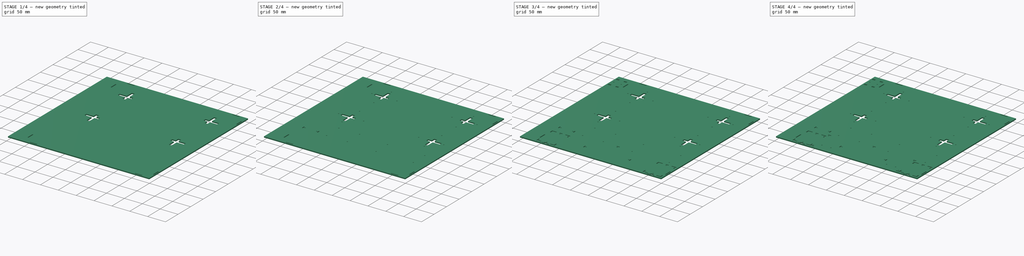
[diagram: build sequence overview — one tinted view per stage of 4, left to right]
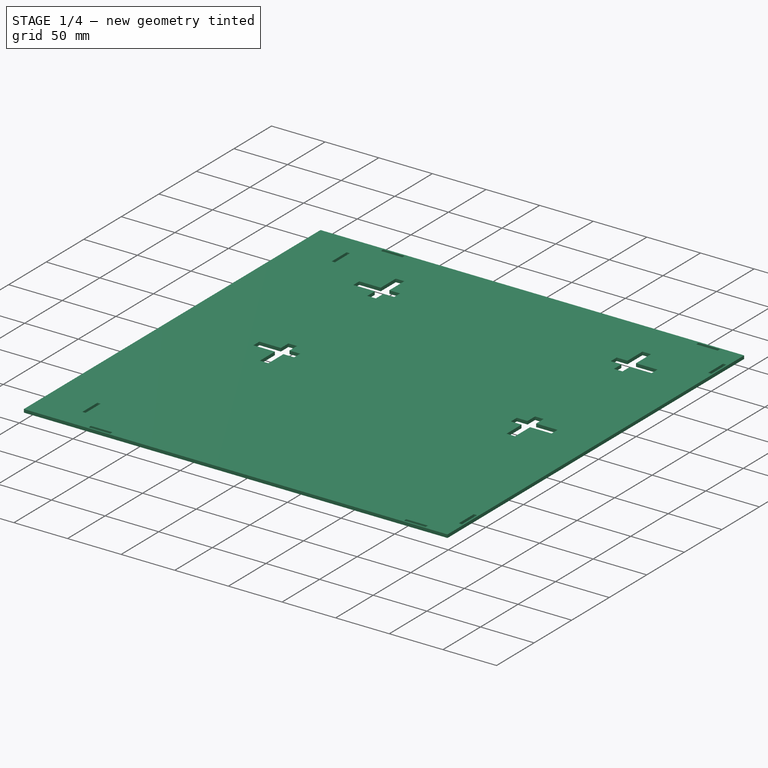
[diagram: stage 1 of 4 — iso view after this stage's code; geometry added in this stage tinted green]
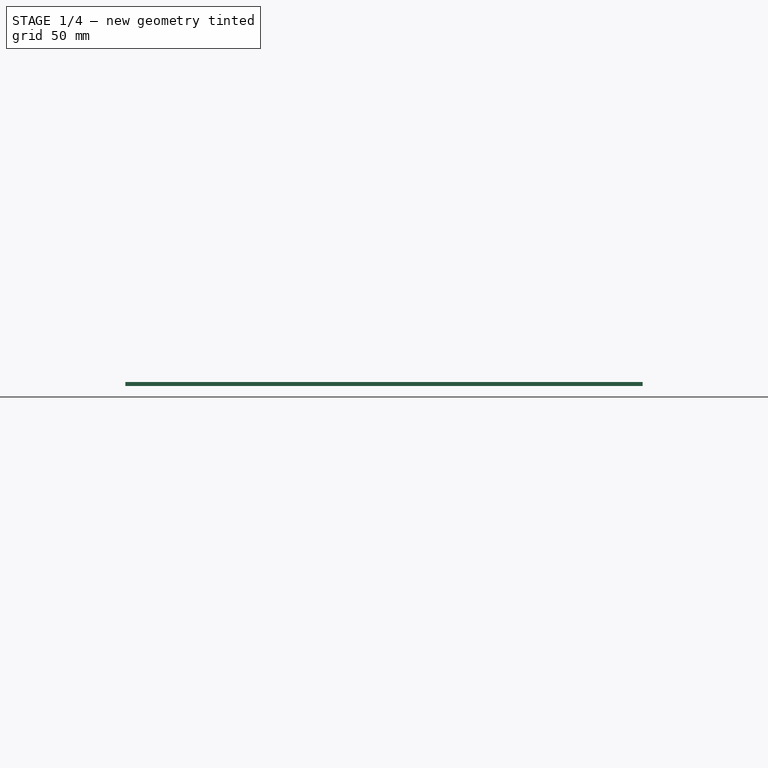
[diagram: stage 1 of 4 — front view after this stage's code; geometry added in this stage tinted green]
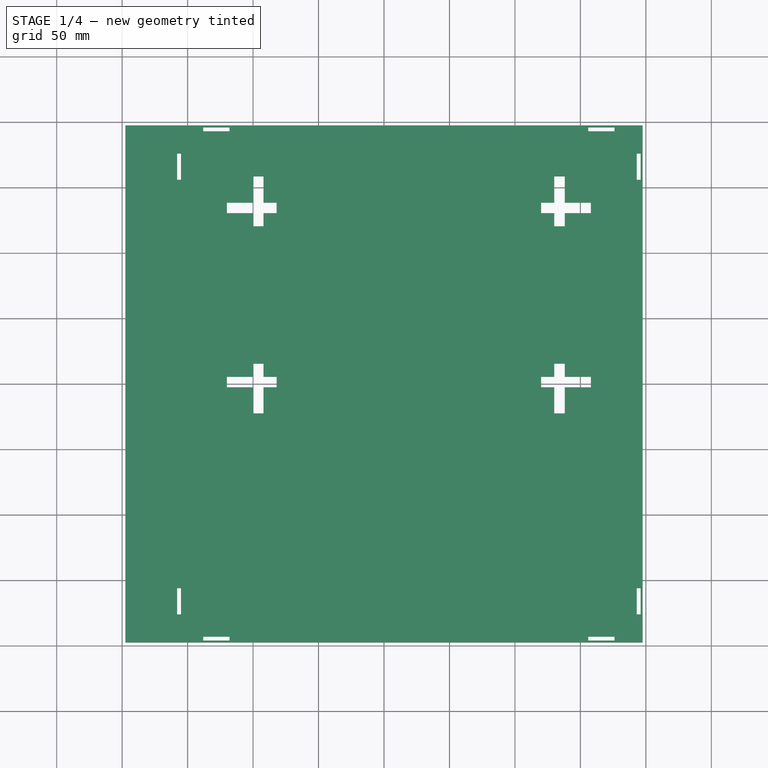
[diagram: stage 1 of 4 — top view after this stage's code; geometry added in this stage tinted green]
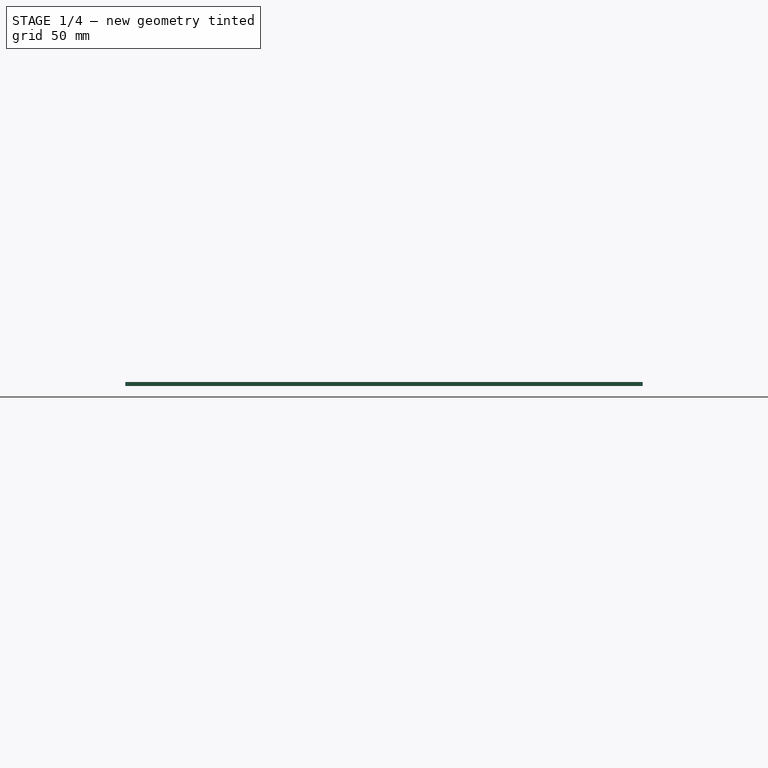
[diagram: stage 1 of 4 — right view after this stage's code; geometry added in this stage tinted green]
FCSTD DOCUMENT  (FreeCAD 0.19R24366 (Git))
Label: ri-baseplate-new
License: All rights reserved
LicenseURL: http://en.wikipedia.org/wiki/All_rights_reserved
objects: Sketcher::SketchObject×10, PartDesign::Pocket×8, PartDesign::Pad×1, PartDesign::Body×1, Part::Part2DObjectPython×1
note: 30 computed .brp shape members not serialized (recipe doc carries the construction recipe); baked Part::Feature solids carry a one-line shape summary decoded from their .brp

FEATURE [Sketcher::SketchObject] Sketch
  FullyConstrained = true
  MapMode = 5
  Support = -> [XY_Plane]
  sketch-geometry (36):
    g0: LineSegment StartX=-197.5 StartY=197.5 StartZ=0 EndX=197.5 EndY=197.5 EndZ=0
    g1: LineSegment StartX=197.5 StartY=197.5 StartZ=0 EndX=197.5 EndY=-197.5 EndZ=0
    g2: LineSegment StartX=197.5 StartY=-197.5 StartZ=0 EndX=-197.5 EndY=-197.5 EndZ=0
    g3: LineSegment StartX=-197.5 StartY=-197.5 StartZ=0 EndX=-197.5 EndY=197.5 EndZ=0
    g4: LineSegment StartX=156 StartY=196 StartZ=0 EndX=176 EndY=196 EndZ=0
    g5: LineSegment StartX=176 StartY=196 StartZ=0 EndX=176 EndY=193 EndZ=0
    g6: LineSegment StartX=176 StartY=193 StartZ=0 EndX=156 EndY=193 EndZ=0
    g7: LineSegment StartX=156 StartY=193 StartZ=0 EndX=156 EndY=196 EndZ=0
    g8: LineSegment StartX=193 StartY=176 StartZ=0 EndX=196 EndY=176 EndZ=0
    g9: LineSegment StartX=196 StartY=176 StartZ=0 EndX=196 EndY=156 EndZ=0
    g10: LineSegment StartX=196 StartY=156 StartZ=0 EndX=193 EndY=156 EndZ=0
    g11: LineSegment StartX=193 StartY=156 StartZ=0 EndX=193 EndY=176 EndZ=0
    g12: LineSegment StartX=-138 StartY=196 StartZ=0 EndX=-118 EndY=196 EndZ=0
    g13: LineSegment StartX=-118 StartY=196 StartZ=0 EndX=-118 EndY=193 EndZ=0
    g14: LineSegment StartX=-118 StartY=193 StartZ=0 EndX=-138 EndY=193 EndZ=0
    g15: LineSegment StartX=-138 StartY=193 StartZ=0 EndX=-138 EndY=196 EndZ=0
    g16: LineSegment StartX=-158 StartY=176 StartZ=0 EndX=-155 EndY=176 EndZ=0
    g17: LineSegment StartX=-155 StartY=176 StartZ=0 EndX=-155 EndY=156 EndZ=0
    g18: LineSegment StartX=-155 StartY=156 StartZ=0 EndX=-158 EndY=156 EndZ=0
    g19: LineSegment StartX=-158 StartY=156 StartZ=0 EndX=-158 EndY=176 EndZ=0
    g20: LineSegment StartX=193 StartY=-156 StartZ=0 EndX=196 EndY=-156 EndZ=0
    g21: LineSegment StartX=196 StartY=-156 StartZ=0 EndX=196 EndY=-176 EndZ=0
    g22: LineSegment StartX=196 StartY=-176 StartZ=0 EndX=193 EndY=-176 EndZ=0
    g23: LineSegment StartX=193 StartY=-176 StartZ=0 EndX=193 EndY=-156 EndZ=0
    g24: LineSegment StartX=156 StartY=-193 StartZ=0 EndX=176 EndY=-193 EndZ=0
    g25: LineSegment StartX=176 StartY=-193 StartZ=0 EndX=176 EndY=-196 EndZ=0
    g26: LineSegment StartX=176 StartY=-196 StartZ=0 EndX=156 EndY=-196 EndZ=0
    g27: LineSegment StartX=156 StartY=-196 StartZ=0 EndX=156 EndY=-193 EndZ=0
    g28: LineSegment StartX=-138 StartY=-193 StartZ=0 EndX=-118 EndY=-193 EndZ=0
    g29: LineSegment StartX=-118 StartY=-193 StartZ=0 EndX=-118 EndY=-196 EndZ=0
    g30: LineSegment StartX=-118 StartY=-196 StartZ=0 EndX=-138 EndY=-196 EndZ=0
    g31: LineSegment StartX=-138 StartY=-196 StartZ=0 EndX=-138 EndY=-193 EndZ=0
    g32: LineSegment StartX=-158 StartY=-156 StartZ=0 EndX=-155 EndY=-156 EndZ=0
    g33: LineSegment StartX=-155 StartY=-156 StartZ=0 EndX=-155 EndY=-176 EndZ=0
    g34: LineSegment StartX=-155 StartY=-176 StartZ=0 EndX=-158 EndY=-176 EndZ=0
    g35: LineSegment StartX=-158 StartY=-176 StartZ=0 EndX=-158 EndY=-156 EndZ=0
  constraints (107):
    c: Coincident(g0,g1)
    c: Coincident(g1,g2)
    c: Coincident(g2,g3)
    c: Coincident(g3,g0)
    c: Horizontal(g0)
    c: Horizontal(g2)
    c: Vertical(g1)
    c: Vertical(g3)
    c: Equal(g0,g3)
    c: DistanceX(g0,g0) = 395  'length'
    c: Symmetric(g0,g2,g-1)
    c: Coincident(g4,g5)
    c: Coincident(g5,g6)
    c: Coincident(g6,g7)
    c: Coincident(g7,g4)
    c: Horizontal(g4)
    c: Horizontal(g6)
    c: Vertical(g5)
    c: Vertical(g7)
    c: Coincident(g8,g9)
    c: Coincident(g9,g10)
    c: Coincident(g10,g11)
    c: Coincident(g11,g8)
    c: Horizontal(g8)
    c: Horizontal(g10)
    c: Vertical(g9)
    c: Vertical(g11)
    c: Coincident(g12,g13)
    c: Coincident(g13,g14)
    c: Coincident(g14,g15)
    c: Coincident(g15,g12)
    c: Horizontal(g12)
    c: Horizontal(g14)
    c: Vertical(g13)
    c: Vertical(g15)
    c: Coincident(g16,g17)
    c: Coincident(g17,g18)
    c: Coincident(g18,g19)
    c: Coincident(g19,g16)
    c: Horizontal(g16)
    c: Horizontal(g18)
    c: Vertical(g17)
    c: Vertical(g19)
    c: Coincident(g20,g21)
    c: Coincident(g21,g22)
    c: Coincident(g22,g23)
    c: Coincident(g23,g20)
    c: Horizontal(g20)
    c: Horizontal(g22)
    c: Vertical(g21)
    c: Vertical(g23)
    c: Coincident(g24,g25)
    c: Coincident(g25,g26)
    c: Coincident(g26,g27)
    c: Coincident(g27,g24)
    c: Horizontal(g24)
    c: Horizontal(g26)
    c: Vertical(g25)
    c: Vertical(g27)
    c: Coincident(g28,g29)
    c: Coincident(g29,g30)
    c: Coincident(g30,g31)
    c: Coincident(g31,g28)
    c: Horizontal(g28)
    c: Horizontal(g30)
    c: Vertical(g29)
    c: Vertical(g31)
    c: Coincident(g32,g33)
    c: Coincident(g33,g34)
    c: Coincident(g34,g35)
    c: Coincident(g35,g32)
    c: Horizontal(g32)
    c: Horizontal(g34)
    c: Vertical(g33)
    c: Vertical(g35)
    c: Equal(g7,g34)
    c: Equal(g34,g31)
    c: Equal(g31,g8)
    c: Equal(g5,g13)
    c: Equal(g13,g16)
    c: Equal(g6,g11)
    c: Equal(g11,g14)
    c: Equal(g14,g17)
    c: Equal(g17,g33)
    c: Equal(g33,g28)
    c: Equal(g28,g24)
    c: Equal(g24,g23)
    c: Equal(g22,g25)
    c: Equal(g25,g31)
    c: DistanceX(g4,g4) = 20
    c: DistanceY(g5,g5) = 3
    c: DistanceX(g8,g0) = 1.5
    c: DistanceY(g8,g0) = 21.5
    c: DistanceX(g4,g0) = 21.5
    c: DistanceY(g4,g0) = 1.5
    c: Horizontal(g12,g4)
    c: Horizontal(g16,g8)
    c: DistanceX(g16,g12) = 20
    c: DistanceX(g13,g6) = 274
    c: Vertical(g20,g9)
    c: DistanceY(g1,g21) = 21.5
    c: Vertical(g24,g5)
    c: DistanceY(g1,g25) = 1.5
    c: Horizontal(g29,g26)
    c: Vertical(g34,g18)
    c: Horizontal(g33,g21)
    c: Vertical(g28,g13)
FEATURE [PartDesign::Pad] Pad
  Direction = (1,1,1)
  Length = 3
  Length2 = 100
  Profile = -> Sketch
  Refine = true
  Type = 0
FEATURE [Sketcher::SketchObject] Sketch001
  FullyConstrained = true
  MapMode = 5
  Placement = pos=(0,0,3) rot=(0,0,1;0rad)
  Support = -> [Pad]
  expr: Constraints[142] = <<Sketch>>.Constraints.length / 2 - 39.5mm
  expr: Constraints[143] = <<Sketch>>.Constraints.length / 2 - 39mm
  sketch-geometry (48):
    g0: LineSegment StartX=-100 StartY=138.5 StartZ=0 EndX=-100 EndY=158.5 EndZ=0
    g1: LineSegment StartX=-100 StartY=158.5 StartZ=0 EndX=-92 EndY=158.5 EndZ=0
    g2: LineSegment StartX=-92 StartY=158.5 StartZ=0 EndX=-92 EndY=138.5 EndZ=0
    g3: LineSegment StartX=-92 StartY=138.5 StartZ=0 EndX=-82 EndY=138.5 EndZ=0
    g4: LineSegment StartX=-82 StartY=138.5 StartZ=0 EndX=-82 EndY=130.5 EndZ=0
    g5: LineSegment StartX=-82 StartY=130.5 StartZ=0 EndX=-92 EndY=130.5 EndZ=0
    g6: LineSegment StartX=-92 StartY=130.5 StartZ=0 EndX=-92 EndY=120.5 EndZ=0
    g7: LineSegment StartX=-92 StartY=120.5 StartZ=0 EndX=-100 EndY=120.5 EndZ=0
    g8: LineSegment StartX=-100 StartY=120.5 StartZ=0 EndX=-100 EndY=130.5 EndZ=0
    g9: LineSegment StartX=-100 StartY=130.5 StartZ=0 EndX=-120 EndY=130.5 EndZ=0
    g10: LineSegment StartX=-120 StartY=130.5 StartZ=0 EndX=-120 EndY=138.5 EndZ=0
    g11: LineSegment StartX=-120 StartY=138.5 StartZ=0 EndX=-100 EndY=138.5 EndZ=0
    g12: LineSegment StartX=130 StartY=158.5 StartZ=0 EndX=130 EndY=138.5 EndZ=0
    g13: LineSegment StartX=130 StartY=138.5 StartZ=0 EndX=120 EndY=138.5 EndZ=0
    g14: LineSegment StartX=120 StartY=138.5 StartZ=0 EndX=120 EndY=130.5 EndZ=0
    g15: LineSegment StartX=120 StartY=130.5 StartZ=0 EndX=130 EndY=130.5 EndZ=0
    g16: LineSegment StartX=130 StartY=130.5 StartZ=0 EndX=130 EndY=120.5 EndZ=0
    g17: LineSegment StartX=130 StartY=120.5 StartZ=0 EndX=138 EndY=120.5 EndZ=0
    g18: LineSegment StartX=138 StartY=120.5 StartZ=0 EndX=138 EndY=130.5 EndZ=0
    g19: LineSegment StartX=138 StartY=130.5 StartZ=0 EndX=158 EndY=130.5 EndZ=0
    g20: LineSegment StartX=158 StartY=130.5 StartZ=0 EndX=158 EndY=138.5 EndZ=0
    g21: LineSegment StartX=158 StartY=138.5 StartZ=0 EndX=138 EndY=138.5 EndZ=0
    g22: LineSegment StartX=138 StartY=138.5 StartZ=0 EndX=138 EndY=158.5 EndZ=0
    g23: LineSegment StartX=138 StartY=158.5 StartZ=0 EndX=130 EndY=158.5 EndZ=0
    g24: LineSegment StartX=130 StartY=15.5 StartZ=0 EndX=130 EndY=5.5 EndZ=0
    g25: LineSegment StartX=130 StartY=5.5 StartZ=0 EndX=120 EndY=5.5 EndZ=0
    g26: LineSegment StartX=120 StartY=5.5 StartZ=0 EndX=120 EndY=-2.5 EndZ=0
    g27: LineSegment StartX=120 StartY=-2.5 StartZ=0 EndX=130 EndY=-2.5 EndZ=0
    g28: LineSegment StartX=130 StartY=-2.5 StartZ=0 EndX=130 EndY=-22.5 EndZ=0
    g29: LineSegment StartX=130 StartY=-22.5 StartZ=0 EndX=138 EndY=-22.5 EndZ=0
    g30: LineSegment StartX=138 StartY=-22.5 StartZ=0 EndX=138 EndY=-2.5 EndZ=0
    g31: LineSegment StartX=138 StartY=-2.5 StartZ=0 EndX=158 EndY=-2.5 EndZ=0
    g32: LineSegment StartX=158 StartY=-2.5 StartZ=0 EndX=158 EndY=5.5 EndZ=0
    g33: LineSegment StartX=158 StartY=5.5 StartZ=0 EndX=138 EndY=5.5 EndZ=0
    g34: LineSegment StartX=138 StartY=5.5 StartZ=0 EndX=138 EndY=15.5 EndZ=0
    g35: LineSegment StartX=138 StartY=15.5 StartZ=0 EndX=130 EndY=15.5 EndZ=0
    g36: LineSegment StartX=-100 StartY=15.5 StartZ=0 EndX=-92 EndY=15.5 EndZ=0
    g37: LineSegment StartX=-92 StartY=15.5 StartZ=0 EndX=-92 EndY=5.5 EndZ=0
    g38: LineSegment StartX=-92 StartY=5.5 StartZ=0 EndX=-82 EndY=5.5 EndZ=0
    g39: LineSegment StartX=-82 StartY=5.5 StartZ=0 EndX=-82 EndY=-2.5 EndZ=0
    g40: LineSegment StartX=-82 StartY=-2.5 StartZ=0 EndX=-92 EndY=-2.5 EndZ=0
    g41: LineSegment StartX=-92 StartY=-2.5 StartZ=0 EndX=-92 EndY=-22.5 EndZ=0
    g42: LineSegment StartX=-92 StartY=-22.5 StartZ=0 EndX=-100 EndY=-22.5 EndZ=0
    g43: LineSegment StartX=-100 StartY=-22.5 StartZ=0 EndX=-100 EndY=-2.5 EndZ=0
    g44: LineSegment StartX=-100 StartY=-2.5 StartZ=0 EndX=-120 EndY=-2.5 EndZ=0
    g45: LineSegment StartX=-120 StartY=-2.5 StartZ=0 EndX=-120 EndY=5.5 EndZ=0
    g46: LineSegment StartX=-120 StartY=5.5 StartZ=0 EndX=-100 EndY=5.5 EndZ=0
    g47: LineSegment StartX=-100 StartY=5.5 StartZ=0 EndX=-100 EndY=15.5 EndZ=0
  constraints (144):
    c: Vertical(g0)
    c: Coincident(g0,g1)
    c: Horizontal(g1)
    c: Coincident(g1,g2)
    c: Vertical(g2)
    c: Coincident(g2,g3)
    c: Horizontal(g3)
    c: Coincident(g3,g4)
    c: Vertical(g4)
    c: Coincident(g4,g5)
    c: Horizontal(g5)
    c: Coincident(g5,g6)
    c: Coincident(g6,g7)
    c: Horizontal(g7)
    c: Coincident(g7,g8)
    c: Vertical(g8)
    c: Coincident(g8,g9)
    c: Horizontal(g9)
    c: Coincident(g9,g10)
    c: Vertical(g10)
    c: Coincident(g10,g11)
    c: Coincident(g11,g0)
    c: Vertical(g6)
    c: Horizontal(g11)
    c: Vertical(g12)
    c: Coincident(g12,g13)
    c: Horizontal(g13)
    c: Coincident(g13,g14)
    c: Vertical(g14)
    c: Coincident(g14,g15)
    c: Horizontal(g15)
    c: Coincident(g15,g16)
    c: Vertical(g16)
    c: Coincident(g16,g17)
    c: Horizontal(g17)
    c: Coincident(g17,g18)
    c: Vertical(g18)
    c: Coincident(g18,g19)
    c: Horizontal(g19)
    c: Coincident(g19,g20)
    c: Vertical(g20)
    c: Coincident(g20,g21)
    c: Horizontal(g21)
    c: Coincident(g21,g22)
    c: Vertical(g22)
    c: Coincident(g22,g23)
    c: Coincident(g23,g12)
    c: Horizontal(g23)
    c: Coincident(g24,g25)
    c: Coincident(g25,g26)
    c: Vertical(g26)
    c: Coincident(g26,g27)
    c: Coincident(g27,g28)
    c: Vertical(g28)
    c: Coincident(g28,g29)
    c: Coincident(g29,g30)
    c: Coincident(g30,g31)
    c: Horizontal(g31)
    c: Coincident(g31,g32)
    c: Coincident(g32,g33)
    c: Horizontal(g33)
    c: Coincident(g33,g34)
    c: Vertical(g34)
    c: Coincident(g34,g35)
    c: Coincident(g35,g24)
    c: Vertical(g32)
    c: Vertical(g24)
    c: Vertical(g30)
    c: Horizontal(g29)
    c: Horizontal(g27)
    c: Horizontal(g25)
    c: Horizontal(g35)
    c: Horizontal(g36)
    c: Coincident(g36,g37)
    c: Vertical(g37)
    c: Coincident(g37,g38)
    c: Horizontal(g38)
    c: Coincident(g38,g39)
    c: Vertical(g39)
    c: Coincident(g39,g40)
    c: Horizontal(g40)
    c: Coincident(g40,g41)
    c: Coincident(g41,g42)
    c: Horizontal(g42)
    c: Coincident(g42,g43)
    c: Vertical(g43)
    c: Coincident(g43,g44)
    c: Horizontal(g44)
    c: Coincident(g44,g45)
    c: Vertical(g45)
    c: Coincident(g45,g46)
    c: Horizontal(g46)
    c: Coincident(g46,g47)
    c: Coincident(g47,g36)
    c: Vertical(g47)
    c: Vertical(g41)
    c: Equal(g45,g42)
    c: Equal(g42,g36)
    c: Equal(g36,g39)
    c: Equal(g39,g26)
    c: Equal(g26,g29)
    c: Equal(g29,g32)
    c: Equal(g32,g35)
    c: Equal(g35,g17)
    c: Equal(g17,g20)
    c: Equal(g20,g14)
    c: Equal(g14,g23)
    c: Equal(g23,g4)
    c: Equal(g4,g7)
    c: Equal(g7,g10)
    c: Equal(g10,g1)
    c: DistanceX(g1,g1) = 8  'thickness8'
    c: Horizontal(g2,g0)
    c: Vertical(g5,g2)
    c: Horizontal(g21,g12)
    c: Vertical(g18,g21)
    c: Vertical(g46,g43)
    c: Horizontal(g37,g46)
    c: Horizontal(g33,g24)
    c: Vertical(g27,g24)
    c: DistanceY(g6,g6) = 10  'crossshort'
    c: DistanceY(g2,g2) = 20  'crosslong'
    c: Equal(g38,g37)
    c: Equal(g37,g24)
    c: Equal(g24,g16)
    c: Equal(g16,g15)
    c: Equal(g15,g25)
    c: Equal(g25,g5)
    c: Equal(g5,g6)
    c: Equal(g46,g41)
    c: Equal(g41,g28)
    c: Equal(g28,g33)
    c: Equal(g33,g19)
    c: Equal(g19,g12)
    c: Equal(g12,g0)
    c: Equal(g0,g9)
    c: Horizontal(g38,g25)
    c: Horizontal(g14,g4)
    c: Vertical(g25,g14)
    c: Vertical(g4,g38)
    c: DistanceX(g3,g13) = 202
    c: DistanceY(g36,g6) = 105
    c: DistanceX(g-1,g19) = 158
    c: DistanceY(g-1,g22) = 158.5
FEATURE [PartDesign::Pocket] Pocket  label="Scroll-supports"
  BaseFeature = -> Pad
  Length = 3
  Length2 = 100
  Profile = -> Sketch001
  Refine = true
  Type = 0
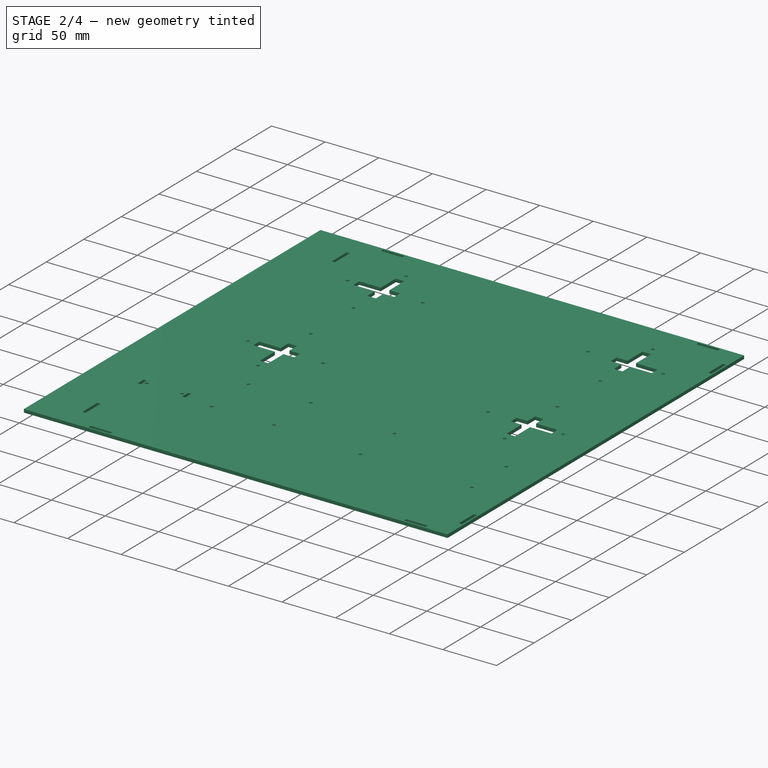
[diagram: stage 2 of 4 — iso view after this stage's code; geometry added in this stage tinted green]
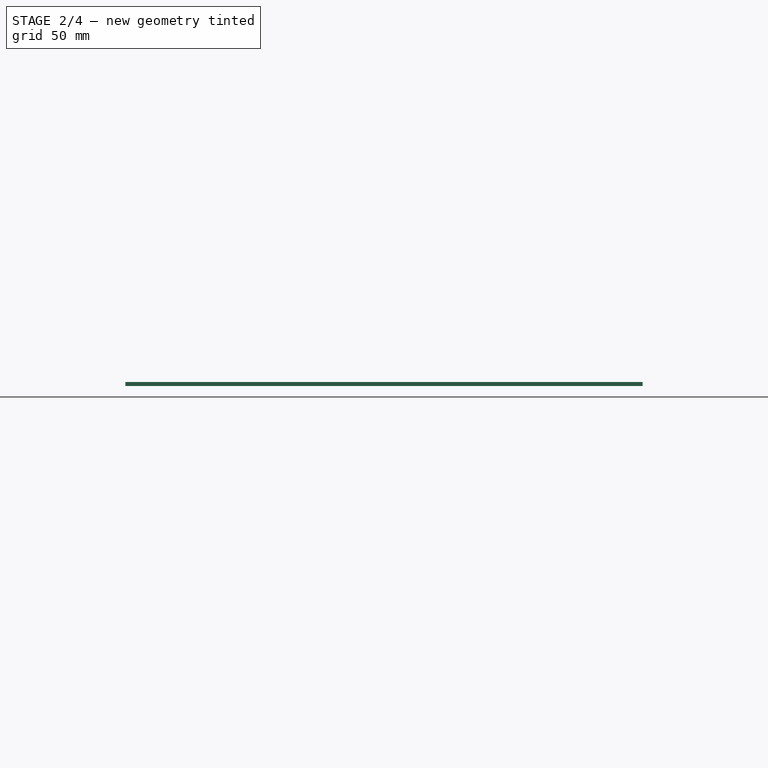
[diagram: stage 2 of 4 — front view after this stage's code; geometry added in this stage tinted green]
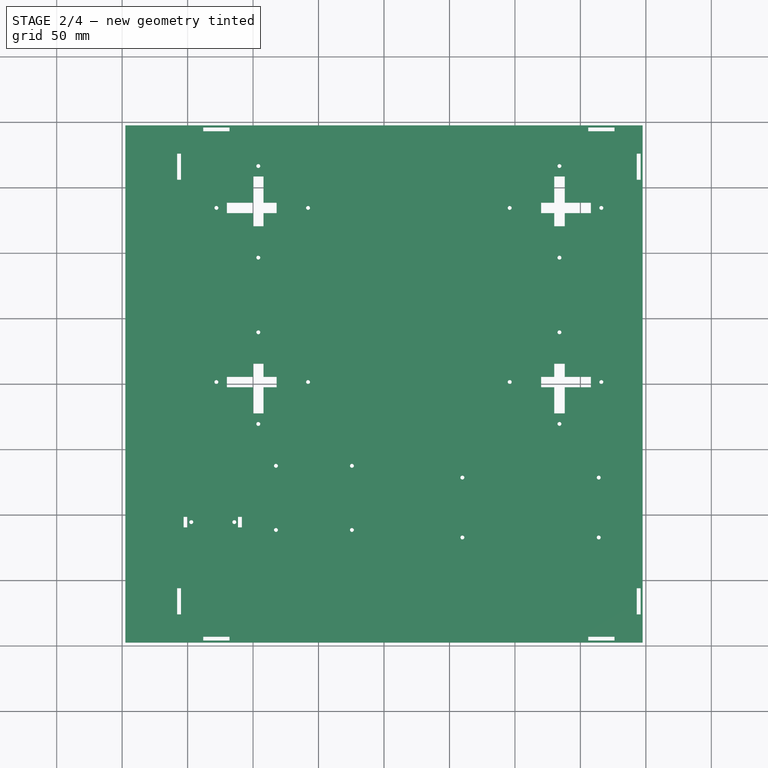
[diagram: stage 2 of 4 — top view after this stage's code; geometry added in this stage tinted green]
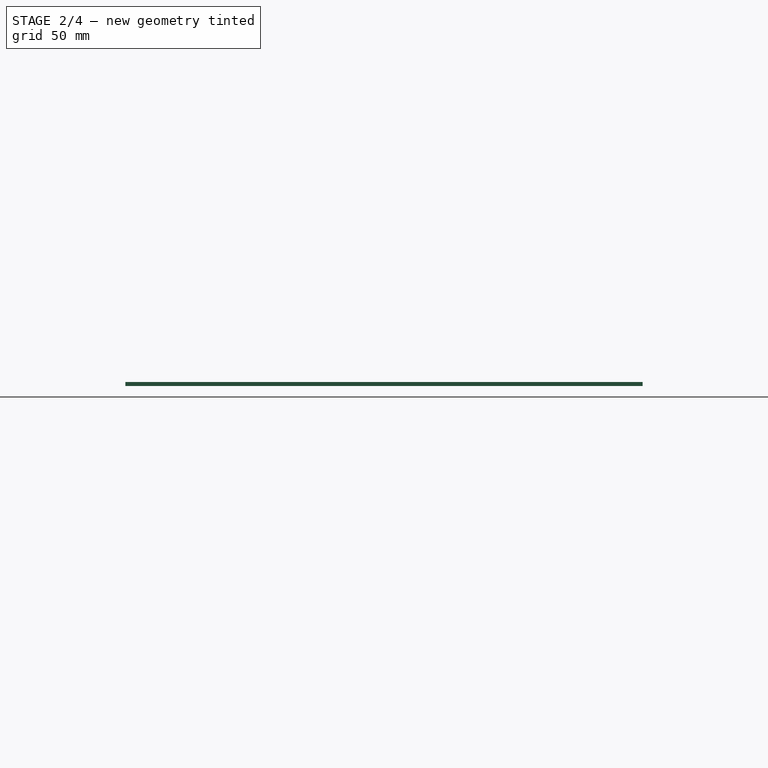
[diagram: stage 2 of 4 — right view after this stage's code; geometry added in this stage tinted green]
FEATURE [Sketcher::SketchObject] Sketch002
  ExternalGeometry = -> [Pocket]
  FullyConstrained = true
  MapMode = 5
  Placement = pos=(0,0,3) rot=(0,0,1;0rad)
  Support = -> [Pocket]
  expr: Constraints[40] = .Constraints.long
  expr: Constraints[43] = .Constraints.short
  expr: Constraints[45] = .Constraints.short
  expr: Constraints[44] = .Constraints.long
  expr: Constraints[46] = .Constraints.long
  expr: Constraints[47] = .Constraints.short
  sketch-geometry (16):
    g0: Circle CenterX=-96 CenterY=39.5 CenterZ=0 NormalX=0 NormalY=0 NormalZ=1 AngleXU=0 Radius=1.5
    g1: Circle CenterX=-58 CenterY=1.5 CenterZ=0 NormalX=0 NormalY=0 NormalZ=1 AngleXU=0 Radius=1.5
    g2: Circle CenterX=-96 CenterY=-30.5 CenterZ=0 NormalX=0 NormalY=0 NormalZ=1 AngleXU=0 Radius=1.5
    g3: Circle CenterX=-128 CenterY=1.5 CenterZ=0 NormalX=0 NormalY=0 NormalZ=1 AngleXU=0 Radius=1.5
    g4: Circle CenterX=96 CenterY=1.5 CenterZ=0 NormalX=0 NormalY=0 NormalZ=1 AngleXU=0 Radius=1.5
    g5: Circle CenterX=134 CenterY=39.5 CenterZ=0 NormalX=0 NormalY=0 NormalZ=1 AngleXU=0 Radius=1.5
    g6: Circle CenterX=134 CenterY=-30.5 CenterZ=0 NormalX=0 NormalY=0 NormalZ=1 AngleXU=0 Radius=1.5
    g7: Circle CenterX=166 CenterY=1.5 CenterZ=0 NormalX=0 NormalY=0 NormalZ=1 AngleXU=0 Radius=1.5
    g8: Circle CenterX=134 CenterY=96.5 CenterZ=0 NormalX=0 NormalY=0 NormalZ=1 AngleXU=0 Radius=1.5
    g9: Circle CenterX=166 CenterY=134.5 CenterZ=0 NormalX=0 NormalY=0 NormalZ=1 AngleXU=0 Radius=1.5
    g10: Circle CenterX=134 CenterY=166.5 CenterZ=0 NormalX=0 NormalY=0 NormalZ=1 AngleXU=0 Radius=1.5
    g11: Circle CenterX=96 CenterY=134.5 CenterZ=0 NormalX=0 NormalY=0 NormalZ=1 AngleXU=0 Radius=1.5
    g12: Circle CenterX=-58 CenterY=134.5 CenterZ=0 NormalX=0 NormalY=0 NormalZ=1 AngleXU=0 Radius=1.5
    g13: Circle CenterX=-96 CenterY=96.5 CenterZ=0 NormalX=0 NormalY=0 NormalZ=1 AngleXU=0 Radius=1.5
    g14: Circle CenterX=-96 CenterY=166.5 CenterZ=0 NormalX=0 NormalY=0 NormalZ=1 AngleXU=0 Radius=1.5
    g15: Circle CenterX=-128 CenterY=134.5 CenterZ=0 NormalX=0 NormalY=0 NormalZ=1 AngleXU=0 Radius=1.5
  constraints (48):
    c: Equal(g14,g15)
    c: Equal(g15,g13)
    c: Equal(g13,g12)
    c: Equal(g12,g11)
    c: Equal(g11,g10)
    c: Equal(g10,g9)
    c: Equal(g9,g8)
    c: Equal(g8,g7)
    c: Equal(g7,g5)
    c: Equal(g5,g4)
    c: Equal(g4,g6)
    c: Equal(g6,g1)
    c: Equal(g1,g2)
    c: Equal(g2,g0)
    c: Equal(g0,g3)
    c: Diameter(g14) = 3  'M3'
    c: DistanceX(g-5,g5) = 4
    c: DistanceY(g4,g-6) = 4
    c: DistanceY(g-3,g12) = 4
    c: DistanceX(g13,g-4) = 4
    c: Vertical(g14,g13)
    c: Vertical(g13,g0)
    c: Vertical(g0,g2)
    c: Horizontal(g3,g1)
    c: Horizontal(g1,g4)
    c: Horizontal(g4,g7)
    c: Vertical(g6,g5)
    c: Vertical(g5,g8)
    c: Vertical(g8,g10)
    c: Horizontal(g9,g11)
    c: Horizontal(g11,g12)
    c: Horizontal(g12,g15)
    c: Vertical(g1,g12)
    c: Vertical(g3,g15)
    c: Horizontal(g10,g14)
    c: Vertical(g9,g7)
    c: Vertical(g4,g11)
    c: Horizontal(g2,g6)
    c: Horizontal(g5,g0)
    c: Horizontal(g8,g13)
    c: DistanceX(g-3,g12) = 24
    c: DistanceY(g13,g-4) = 24  'long'
    c: DistanceX(g15,g-7) = 8  'short'
    c: DistanceY(g-8,g14) = 8
    c: DistanceX(g11,g-10) = 24
    c: DistanceX(g-9,g9) = 8
    c: DistanceY(g-5,g5) = 24
    c: DistanceY(g6,g-11) = 8
FEATURE [PartDesign::Pocket] Pocket001  label="Scroll-supports-holes"
  BaseFeature = -> Pocket
  Length = 3
  Length2 = 100
  Profile = -> Sketch002
  Refine = true
  Type = 0
FEATURE [Sketcher::SketchObject] Sketch003
  ExternalGeometry = -> [Pocket001]
  FullyConstrained = true
  MapMode = 5
  Placement = pos=(0,0,3) rot=(0,0,1;0rad)
  Support = -> [Pocket001]
  expr: Constraints[24] = <<Sketch002>>.Constraints.M3
  sketch-geometry (19):
    g0: LineSegment StartX=-153 StartY=-101.5 StartZ=0 EndX=-150 EndY=-101.5 EndZ=0
    g1: LineSegment StartX=-150 StartY=-101.5 StartZ=0 EndX=-150 EndY=-109.5 EndZ=0
    g2: LineSegment StartX=-150 StartY=-109.5 StartZ=0 EndX=-153 EndY=-109.5 EndZ=0
    g3: LineSegment StartX=-153 StartY=-109.5 StartZ=0 EndX=-153 EndY=-101.5 EndZ=0
    g4: LineSegment StartX=-111.5 StartY=-101.5 StartZ=0 EndX=-108.5 EndY=-101.5 EndZ=0
    g5: LineSegment StartX=-108.5 StartY=-101.5 StartZ=0 EndX=-108.5 EndY=-109.5 EndZ=0
    g6: LineSegment StartX=-108.5 StartY=-109.5 StartZ=0 EndX=-111.5 EndY=-109.5 EndZ=0
    g7: LineSegment StartX=-111.5 StartY=-109.5 StartZ=0 EndX=-111.5 EndY=-101.5 EndZ=0
    g8: Circle CenterX=-147.2 CenterY=-105.5 CenterZ=0 NormalX=0 NormalY=0 NormalZ=1 AngleXU=0 Radius=1.5
    g9: Circle CenterX=-114.3 CenterY=-105.5 CenterZ=0 NormalX=0 NormalY=0 NormalZ=1 AngleXU=0 Radius=1.5
    g10: Circle CenterX=-82.5 CenterY=-62.5 CenterZ=0 NormalX=0 NormalY=0 NormalZ=1 AngleXU=0 Radius=1.5
    g11: Circle CenterX=-82.5 CenterY=-111.5 CenterZ=0 NormalX=0 NormalY=0 NormalZ=1 AngleXU=0 Radius=1.5
    g12: Circle CenterX=-24.5 CenterY=-62.5 CenterZ=0 NormalX=0 NormalY=0 NormalZ=1 AngleXU=0 Radius=1.5
    g13: Circle CenterX=-24.5 CenterY=-111.5 CenterZ=0 NormalX=0 NormalY=0 NormalZ=1 AngleXU=0 Radius=1.5
    g14: GeomPoint X=-111.5 Y=-105.5 Z=0
    g15: Circle CenterX=59.86 CenterY=-71.5 CenterZ=0 NormalX=0 NormalY=0 NormalZ=1 AngleXU=0 Radius=1.5
    g16: Circle CenterX=164 CenterY=-71.5 CenterZ=0 NormalX=0 NormalY=0 NormalZ=1 AngleXU=0 Radius=1.5
    g17: Circle CenterX=59.86 CenterY=-117.22 CenterZ=0 NormalX=0 NormalY=0 NormalZ=1 AngleXU=0 Radius=1.5
    g18: Circle CenterX=164 CenterY=-117.22 CenterZ=0 NormalX=0 NormalY=0 NormalZ=1 AngleXU=0 Radius=1.5
  constraints (55):
    c: Coincident(g0,g1)
    c: Coincident(g1,g2)
    c: Coincident(g2,g3)
    c: Coincident(g3,g0)
    c: Horizontal(g0)
    c: Horizontal(g2)
    c: Vertical(g1)
    c: Vertical(g3)
    c: Coincident(g4,g5)
    c: Coincident(g5,g6)
    c: Coincident(g6,g7)
    c: Coincident(g7,g4)
    c: Horizontal(g4)
    c: Horizontal(g6)
    c: Vertical(g5)
    c: Vertical(g7)
    c: Vertical(g12,g13)
    c: Vertical(g10,g11)
    c: Horizontal(g10,g12)
    c: Horizontal(g11,g13)
    c: Equal(g10,g12)
    c: Equal(g10,g11)
    c: Equal(g10,g13)
    c: Equal(g8,g9)
    c: Diameter(g8) = 3
    c: Horizontal(g4,g0)
    c: Symmetric(g4,g6,g14)
    c: Equal(g3,g7)
    c: Equal(g0,g4)
    c: DistanceY(g3,g3) = 8  'thickness'
    c: DistanceX(g0,g0) = 3  'baseplate'
    c: Horizontal(g14,g9)
    c: Horizontal(g9,g8)
    c: DistanceX(g9,g14) = 2.8
    c: DistanceX(g1,g8) = 2.8
    c: DistanceX(g0,g4) = 38.5
    c: DistanceX(g5,g11) = 26
    c: DistanceY(g11,g5) = 2
    c: DistanceY(g13,g12) = 49
    c: DistanceX(g10,g12) = 58
    c: DistanceY(g10,g-7) = 60
    c: DistanceX(g-5,g2) = 2
    c: Equal(g17,g18)
    c: Equal(g18,g16)
    c: Equal(g16,g15)
    c: Equal(g15,g12)
    c: Diameter(g12) = 3
    c: Vertical(g17,g15)
    c: Horizontal(g17,g18)
    c: Vertical(g18,g16)
    c: Horizontal(g16,g15)
    c: DistanceX(g15,g16) = 104.14
    c: DistanceY(g17,g15) = 45.72
    c: DistanceX(g18,g-4) = 29
    c: DistanceY(g15,g-7) = 69
FEATURE [PartDesign::Pocket] Pocket002  label="Raspi+Board"
  BaseFeature = -> Pocket001
  Length = 3
  Length2 = 100
  Profile = -> Sketch003
  Refine = true
  Type = 0
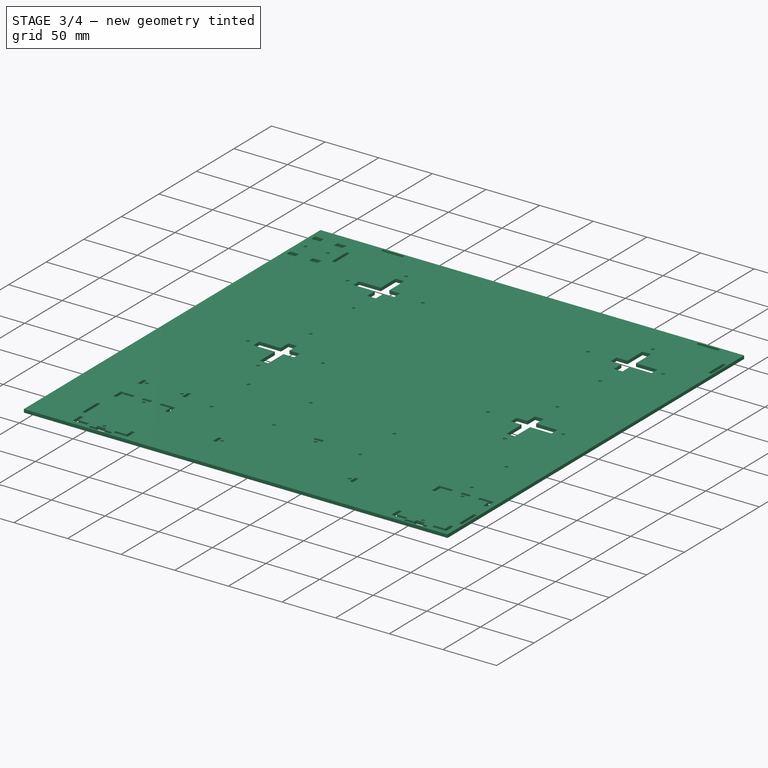
[diagram: stage 3 of 4 — iso view after this stage's code; geometry added in this stage tinted green]
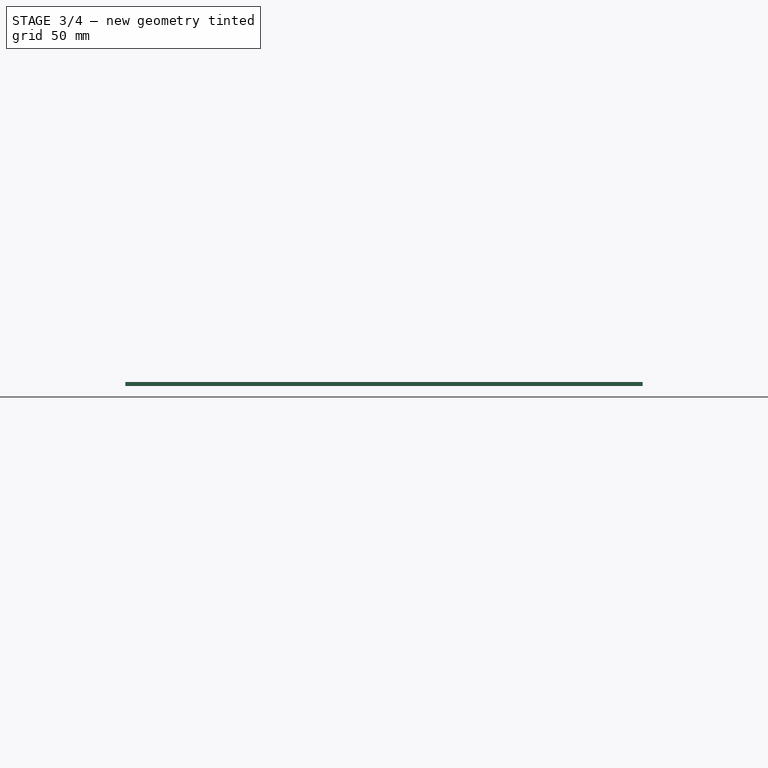
[diagram: stage 3 of 4 — front view after this stage's code; geometry added in this stage tinted green]
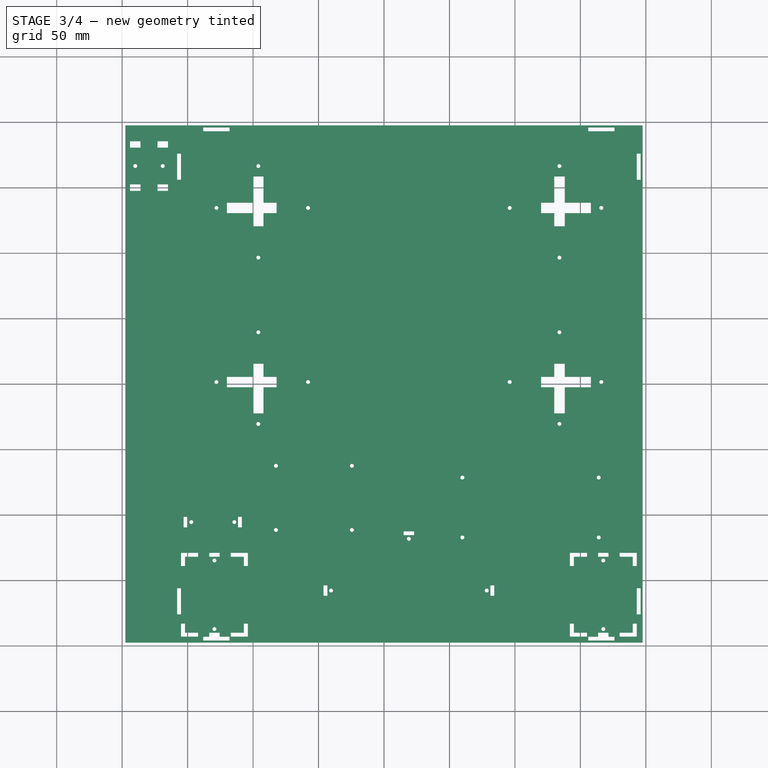
[diagram: stage 3 of 4 — top view after this stage's code; geometry added in this stage tinted green]
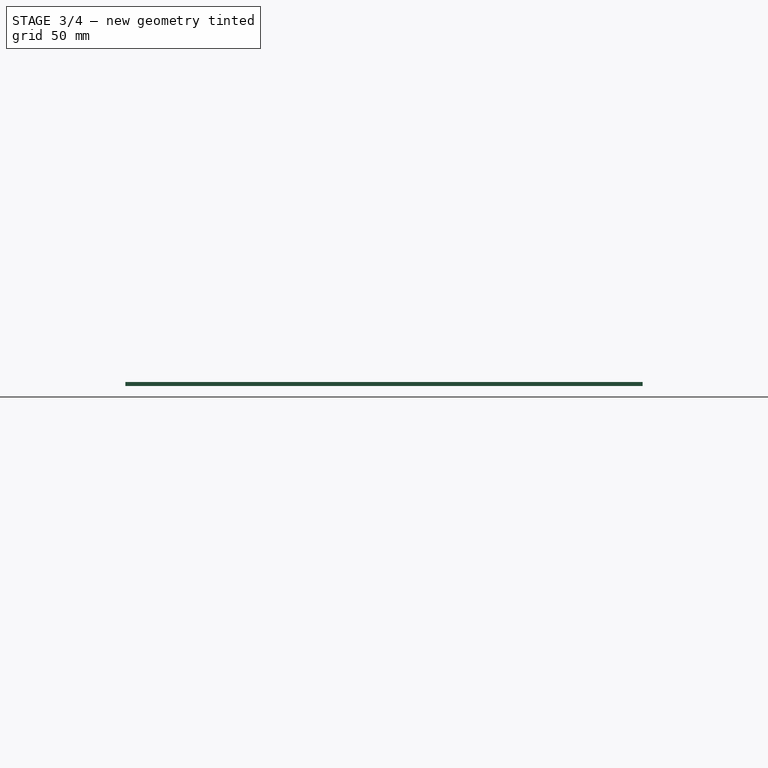
[diagram: stage 3 of 4 — right view after this stage's code; geometry added in this stage tinted green]
FEATURE [Sketcher::SketchObject] Sketch004
  ExternalGeometry = -> [Pocket002]
  FullyConstrained = true
  MapMode = 5
  Placement = pos=(0,0,3) rot=(0,0,1;0rad)
  Support = -> [Pocket002]
  expr: Constraints[31] = Sketch003.Constraints.thickness
  expr: Constraints[30] = Sketch003.Constraints.baseplate
  expr: Constraints[26] = <<Sketch002>>.Constraints.M3
  sketch-geometry (17):
    g0: LineSegment StartX=15 StartY=-115.5 StartZ=0 EndX=23 EndY=-115.5 EndZ=0
    g1: LineSegment StartX=23 StartY=-115.5 StartZ=0 EndX=23 EndY=-112.5 EndZ=0
    g2: LineSegment StartX=23 StartY=-112.5 StartZ=0 EndX=15 EndY=-112.5 EndZ=0
    g3: LineSegment StartX=15 StartY=-112.5 StartZ=0 EndX=15 EndY=-115.5 EndZ=0
    g4: LineSegment StartX=84.25 StartY=-153.75 StartZ=0 EndX=81.25 EndY=-153.75 EndZ=0
    g5: LineSegment StartX=81.25 StartY=-153.75 StartZ=0 EndX=81.25 EndY=-161.75 EndZ=0
    g6: LineSegment StartX=81.25 StartY=-161.75 StartZ=0 EndX=84.25 EndY=-161.75 EndZ=0
    g7: LineSegment StartX=84.25 StartY=-161.75 StartZ=0 EndX=84.25 EndY=-153.75 EndZ=0
    g8: LineSegment StartX=-46.25 StartY=-153.75 StartZ=0 EndX=-43.25 EndY=-153.75 EndZ=0
    g9: LineSegment StartX=-43.25 StartY=-153.75 StartZ=0 EndX=-43.25 EndY=-161.75 EndZ=0
    g10: LineSegment StartX=-43.25 StartY=-161.75 StartZ=0 EndX=-46.25 EndY=-161.75 EndZ=0
    g11: LineSegment StartX=-46.25 StartY=-161.75 StartZ=0 EndX=-46.25 EndY=-153.75 EndZ=0
    g12: Circle CenterX=19 CenterY=-118.3 CenterZ=0 NormalX=0 NormalY=0 NormalZ=1 AngleXU=0 Radius=1.5
    g13: Circle CenterX=78.45 CenterY=-157.75 CenterZ=0 NormalX=0 NormalY=0 NormalZ=1 AngleXU=0 Radius=1.5
    g14: Circle CenterX=-40.45 CenterY=-157.75 CenterZ=0 NormalX=0 NormalY=0 NormalZ=1 AngleXU=0 Radius=1.5
    g15: LineSegment StartX=-46.25 StartY=-157.75 StartZ=0 EndX=84.25 EndY=-157.75 EndZ=0
    g16: LineSegment StartX=19 StartY=-115.5 StartZ=0 EndX=19 EndY=-193 EndZ=0
  constraints (47):
    c: Coincident(g0,g1)
    c: Coincident(g1,g2)
    c: Coincident(g2,g3)
    c: Coincident(g3,g0)
    c: Horizontal(g0)
    c: Horizontal(g2)
    c: Vertical(g1)
    c: Vertical(g3)
    c: Coincident(g4,g5)
    c: Coincident(g5,g6)
    c: Coincident(g6,g7)
    c: Coincident(g7,g4)
    c: Horizontal(g4)
    c: Horizontal(g6)
    c: Vertical(g5)
    c: Vertical(g7)
    c: Coincident(g8,g9)
    c: Coincident(g9,g10)
    c: Coincident(g10,g11)
    c: Coincident(g11,g8)
    c: Horizontal(g8)
    c: Horizontal(g10)
    c: Vertical(g9)
    c: Vertical(g11)
    c: Equal(g12,g13)
    c: Equal(g13,g14)
    c: Diameter(g14) = 3
    c: Equal(g11,g2)
    c: Equal(g2,g5)
    c: Equal(g6,g1)
    c: DistanceX(g8,g8) = 3
    c: DistanceY(g11,g11) = 8
    c: DistanceX(g8,g4) = 124.5
    c: DistanceX(g8,g14) = 2.8  'holedistance'
    c: Symmetric(g4,g6,g15)
    c: PointOnObject(g13,g15)
    c: Symmetric(g10,g8,g15)
    c: Equal(g8,g3)
    c: Symmetric(g9,g5,g16)
    c: Symmetric(g14,g13,g16)
    c: Symmetric(g0,g0,g16)
    c: PointOnObject(g12,g16)
    c: DistanceY(g16,g16) = 77.5
    c: DistanceY(g12,g16) = 2.8
    c: Symmetric(g-8,g-9,g16)
    c: Vertical(g16)
    c: DistanceY(g15,g16) = 42.25
FEATURE [PartDesign::Pocket] Pocket003  label="batteryholder"
  BaseFeature = -> Pocket002
  Length = 3
  Length2 = 100
  Profile = -> Sketch004
  Refine = true
  Type = 0
FEATURE [Sketcher::SketchObject] Sketch005
  ExternalGeometry = -> [Pocket003]
  FullyConstrained = true
  MapMode = 5
  Placement = pos=(0,0,3) rot=(0,0,1;0rad)
  Support = -> [Pocket003]
  sketch-geometry (68):
    g0: LineSegment StartX=-155 StartY=-129 StartZ=0 EndX=-155 EndY=-139 EndZ=0
    g1: LineSegment StartX=-155 StartY=-139 StartZ=0 EndX=-152 EndY=-139 EndZ=0
    g2: LineSegment StartX=-152 StartY=-139 StartZ=0 EndX=-152 EndY=-132 EndZ=0
    g3: LineSegment StartX=-152 StartY=-132 StartZ=0 EndX=-142 EndY=-132 EndZ=0
    g4: LineSegment StartX=-142 StartY=-132 StartZ=0 EndX=-142 EndY=-129 EndZ=0
    g5: LineSegment StartX=-142 StartY=-129 StartZ=0 EndX=-155 EndY=-129 EndZ=0
    g6: LineSegment StartX=-117 StartY=-129 StartZ=0 EndX=-104 EndY=-129 EndZ=0
    g7: LineSegment StartX=-104 StartY=-129 StartZ=0 EndX=-104 EndY=-139 EndZ=0
    g8: LineSegment StartX=-104 StartY=-139 StartZ=0 EndX=-107 EndY=-139 EndZ=0
    g9: LineSegment StartX=-107 StartY=-139 StartZ=0 EndX=-107 EndY=-132 EndZ=0
    g10: LineSegment StartX=-107 StartY=-132 StartZ=0 EndX=-117 EndY=-132 EndZ=0
    g11: LineSegment StartX=-117 StartY=-132 StartZ=0 EndX=-117 EndY=-129 EndZ=0
    g12: LineSegment StartX=-133.5 StartY=-129 StartZ=0 EndX=-125.5 EndY=-129 EndZ=0
    g13: LineSegment StartX=-125.5 StartY=-129 StartZ=0 EndX=-125.5 EndY=-132 EndZ=0
    g14: LineSegment StartX=-125.5 StartY=-132 StartZ=0 EndX=-133.5 EndY=-132 EndZ=0
    g15: LineSegment StartX=-133.5 StartY=-132 StartZ=0 EndX=-133.5 EndY=-129 EndZ=0
    g16: LineSegment StartX=-133.5 StartY=-190 StartZ=0 EndX=-125.5 EndY=-190 EndZ=0
    g17: LineSegment StartX=-125.5 StartY=-190 StartZ=0 EndX=-125.5 EndY=-193 EndZ=0
    g18: LineSegment StartX=-125.5 StartY=-193 StartZ=0 EndX=-133.5 EndY=-193 EndZ=0
    g19: LineSegment StartX=-133.5 StartY=-193 StartZ=0 EndX=-133.5 EndY=-190 EndZ=0
    g20: LineSegment StartX=163.5 StartY=-129 StartZ=0 EndX=171.5 EndY=-129 EndZ=0
    g21: LineSegment StartX=171.5 StartY=-129 StartZ=0 EndX=171.5 EndY=-132 EndZ=0
    g22: LineSegment StartX=171.5 StartY=-132 StartZ=0 EndX=163.5 EndY=-132 EndZ=0
    g23: LineSegment StartX=163.5 StartY=-132 StartZ=0 EndX=163.5 EndY=-129 EndZ=0
    g24: LineSegment StartX=163.5 StartY=-190 StartZ=0 EndX=171.5 EndY=-190 EndZ=0
    g25: LineSegment StartX=171.5 StartY=-190 StartZ=0 EndX=171.5 EndY=-193 EndZ=0
    g26: LineSegment StartX=171.5 StartY=-193 StartZ=0 EndX=163.5 EndY=-193 EndZ=0
    g27: LineSegment StartX=163.5 StartY=-193 StartZ=0 EndX=163.5 EndY=-190 EndZ=0
    g28: LineSegment StartX=-155 StartY=-183 StartZ=0 EndX=-155 EndY=-193 EndZ=0
    g29: LineSegment StartX=-155 StartY=-193 StartZ=0 EndX=-142 EndY=-193 EndZ=0
    g30: LineSegment StartX=-142 StartY=-193 StartZ=0 EndX=-142 EndY=-190 EndZ=0
    g31: LineSegment StartX=-142 StartY=-190 StartZ=0 EndX=-152 EndY=-190 EndZ=0
    g32: LineSegment StartX=-152 StartY=-190 StartZ=0 EndX=-152 EndY=-183 EndZ=0
    g33: LineSegment StartX=-152 StartY=-183 StartZ=0 EndX=-155 EndY=-183 EndZ=0
    g34: LineSegment StartX=-107 StartY=-183 StartZ=0 EndX=-104 EndY=-183 EndZ=0
    g35: LineSegment StartX=-104 StartY=-183 StartZ=0 EndX=-104 EndY=-193 EndZ=0
    g36: LineSegment StartX=-104 StartY=-193 StartZ=0 EndX=-117 EndY=-193 EndZ=0
    g37: LineSegment StartX=-117 StartY=-193 StartZ=0 EndX=-117 EndY=-190 EndZ=0
    g38: LineSegment StartX=-117 StartY=-190 StartZ=0 EndX=-107 EndY=-190 EndZ=0
    g39: LineSegment StartX=-107 StartY=-190 StartZ=0 EndX=-107 EndY=-183 EndZ=0
    g40: LineSegment StartX=155 StartY=-129 StartZ=0 EndX=155 EndY=-132 EndZ=0
    g41: LineSegment StartX=155 StartY=-132 StartZ=0 EndX=145 EndY=-132 EndZ=0
    g42: LineSegment StartX=145 StartY=-132 StartZ=0 EndX=145 EndY=-139 EndZ=0
    g43: LineSegment StartX=145 StartY=-139 StartZ=0 EndX=142 EndY=-139 EndZ=0
    g44: LineSegment StartX=142 StartY=-139 StartZ=0 EndX=142 EndY=-129 EndZ=0
    g45: LineSegment StartX=142 StartY=-129 StartZ=0 EndX=155 EndY=-129 EndZ=0
    g46: LineSegment StartX=180 StartY=-129 StartZ=0 EndX=180 EndY=-132 EndZ=0
    g47: LineSegment StartX=180 StartY=-132 StartZ=0 EndX=190 EndY=-132 EndZ=0
    g48: LineSegment StartX=190 StartY=-132 StartZ=0 EndX=190 EndY=-139 EndZ=0
    g49: LineSegment StartX=190 StartY=-139 StartZ=0 EndX=193 EndY=-139 EndZ=0
    g50: LineSegment StartX=193 StartY=-139 StartZ=0 EndX=193 EndY=-129 EndZ=0
    g51: LineSegment StartX=193 StartY=-129 StartZ=0 EndX=180 EndY=-129 EndZ=0
    g52: LineSegment StartX=180 StartY=-190 StartZ=0 EndX=180 EndY=-193 EndZ=0
    g53: LineSegment StartX=180 StartY=-193 StartZ=0 EndX=193 EndY=-193 EndZ=0
    g54: LineSegment StartX=193 StartY=-193 StartZ=0 EndX=193 EndY=-183 EndZ=0
    g55: LineSegment StartX=193 StartY=-183 StartZ=0 EndX=190 EndY=-183 EndZ=0
    g56: LineSegment StartX=190 StartY=-183 StartZ=0 EndX=190 EndY=-190 EndZ=0
    g57: LineSegment StartX=190 StartY=-190 StartZ=0 EndX=180 EndY=-190 EndZ=0
    g58: LineSegment StartX=142 StartY=-183 StartZ=0 EndX=145 EndY=-183 EndZ=0
    g59: LineSegment StartX=145 StartY=-183 StartZ=0 EndX=145 EndY=-190 EndZ=0
    g60: LineSegment StartX=145 StartY=-190 StartZ=0 EndX=155 EndY=-190 EndZ=0
    g61: LineSegment StartX=155 StartY=-190 StartZ=0 EndX=155 EndY=-193 EndZ=0
    g62: LineSegment StartX=155 StartY=-193 StartZ=0 EndX=142 EndY=-193 EndZ=0
    g63: LineSegment StartX=142 StartY=-193 StartZ=0 EndX=142 EndY=-183 EndZ=0
    g64: Circle CenterX=-129.5 CenterY=-134.8 CenterZ=0 NormalX=0 NormalY=0 NormalZ=1 AngleXU=0 Radius=1.5
    g65: Circle CenterX=-129.5 CenterY=-187.2 CenterZ=0 NormalX=0 NormalY=0 NormalZ=1 AngleXU=0 Radius=1.5
    g66: Circle CenterX=167.5 CenterY=-134.8 CenterZ=0 NormalX=0 NormalY=0 NormalZ=1 AngleXU=0 Radius=1.5
    g67: Circle CenterX=167.5 CenterY=-187.2 CenterZ=0 NormalX=0 NormalY=0 NormalZ=1 AngleXU=0 Radius=1.5
  constraints (204):
    c: Vertical(g0)
    c: Coincident(g0,g1)
    c: Horizontal(g1)
    c: Coincident(g1,g2)
    c: Vertical(g2)
    c: Coincident(g2,g3)
    c: Coincident(g3,g4)
    c: Vertical(g4)
    c: Coincident(g4,g5)
    c: Coincident(g5,g0)
    c: Horizontal(g5)
    c: Horizontal(g3)
    c: Horizontal(g6)
    c: Coincident(g6,g7)
    c: Vertical(g7)
    c: Coincident(g7,g8)
    c: Horizontal(g8)
    c: Coincident(g8,g9)
    c: Vertical(g9)
    c: Coincident(g9,g10)
    c: Horizontal(g10)
    c: Coincident(g10,g11)
    c: Coincident(g11,g6)
    c: Vertical(g11)
    c: Coincident(g12,g13)
    c: Coincident(g13,g14)
    c: Coincident(g14,g15)
    c: Coincident(g15,g12)
    c: Horizontal(g12)
    c: Horizontal(g14)
    c: Vertical(g13)
    c: Vertical(g15)
    c: Coincident(g16,g17)
    c: Coincident(g17,g18)
    c: Coincident(g18,g19)
    c: Coincident(g19,g16)
    c: Horizontal(g16)
    c: Horizontal(g18)
    c: Vertical(g17)
    c: Vertical(g19)
    c: Coincident(g20,g21)
    c: Coincident(g21,g22)
    c: Coincident(g22,g23)
    c: Coincident(g23,g20)
    c: Horizontal(g20)
    c: Horizontal(g22)
    c: Vertical(g21)
    c: Vertical(g23)
    c: Coincident(g24,g25)
    c: Coincident(g25,g26)
    c: Coincident(g26,g27)
    c: Coincident(g27,g24)
    c: Horizontal(g24)
    c: Horizontal(g26)
    c: Vertical(g25)
    c: Vertical(g27)
    c: Vertical(g28)
    c: Coincident(g28,g29)
    c: Horizontal(g29)
    c: Coincident(g29,g30)
    c: Vertical(g30)
    c: Coincident(g30,g31)
    c: Horizontal(g31)
    c: Coincident(g31,g32)
    c: Vertical(g32)
    c: Coincident(g32,g33)
    c: Coincident(g33,g28)
    c: Horizontal(g33)
    c: Horizontal(g34)
    c: Coincident(g34,g35)
    c: Vertical(g35)
    c: Coincident(g35,g36)
    c: Horizontal(g36)
    c: Coincident(g36,g37)
    c: Vertical(g37)
    c: Coincident(g37,g38)
    c: Horizontal(g38)
    c: Coincident(g38,g39)
    c: Coincident(g39,g34)
    c: Vertical(g39)
    c: Vertical(g40)
    c: Coincident(g40,g41)
    c: Horizontal(g41)
    c: Coincident(g41,g42)
    c: Vertical(g42)
    c: Coincident(g42,g43)
    c: Horizontal(g43)
    c: Coincident(g43,g44)
    c: Vertical(g44)
    c: Coincident(g44,g45)
    c: Coincident(g45,g40)
    c: Horizontal(g45)
    c: Vertical(g46)
    c: Coincident(g46,g47)
    c: Horizontal(g47)
    c: Coincident(g47,g48)
    c: Vertical(g48)
    c: Coincident(g48,g49)
    c: Horizontal(g49)
    c: Coincident(g49,g50)
    c: Vertical(g50)
    c: Coincident(g50,g51)
    c: Coincident(g51,g46)
    c: Horizontal(g51)
    c: Vertical(g52)
    c: Coincident(g52,g53)
    c: Horizontal(g53)
    c: Coincident(g53,g54)
    c: Vertical(g54)
    c: Coincident(g54,g55)
    c: Horizontal(g55)
    c: Coincident(g55,g56)
    c: Vertical(g56)
    c: Coincident(g56,g57)
    c: Coincident(g57,g52)
    c: Horizontal(g57)
    c: Horizontal(g58)
    c: Coincident(g58,g59)
    c: Vertical(g59)
    c: Coincident(g59,g60)
    c: Horizontal(g60)
    c: Coincident(g60,g61)
    c: Vertical(g61)
    c: Coincident(g61,g62)
    c: Horizontal(g62)
    c: Coincident(g62,g63)
    c: Coincident(g63,g58)
    c: Vertical(g63)
    c: Equal(g58,g61)
    c: Equal(g61,g27)
    c: Equal(g25,g52)
    c: Equal(g52,g55)
    c: Equal(g55,g49)
    c: Equal(g49,g46)
    c: Equal(g46,g21)
    c: Equal(g23,g40)
    c: Equal(g40,g43)
    c: Equal(g43,g8)
    c: Equal(g8,g34)
    c: Equal(g34,g37)
    c: Equal(g37,g17)
    c: Equal(g19,g30)
    c: Equal(g30,g33)
    c: Equal(g33,g1)
    c: Equal(g1,g4)
    c: Equal(g4,g15)
    c: Equal(g13,g11)
    c: DistanceY(g4,g4) = 3
    c: DistanceX(g5,g5) = 13
    c: DistanceY(g0,g0) = 10
    c: Equal(g53,g51)
    c: Equal(g51,g45)
    c: Equal(g45,g62)
    c: Equal(g62,g6)
    c: Equal(g6,g36)
    c: Equal(g36,g29)
    c: Equal(g29,g5)
    c: Equal(g7,g35)
    c: Equal(g35,g28)
    c: Equal(g28,g44)
    c: Equal(g44,g50)
    c: Equal(g50,g54)
    c: Equal(g54,g63)
    c: Equal(g63,g0)
    c: Horizontal(g6,g0)
    c: Horizontal(g0,g44)
    c: Horizontal(g44,g50)
    c: Horizontal(g20,g50)
    c: Horizontal(g12,g0)
    c: Horizontal(g18,g28)
    c: Horizontal(g28,g35)
    c: Horizontal(g35,g62)
    c: Horizontal(g62,g25)
    c: Horizontal(g25,g53)
    c: Vertical(g53,g50)
    c: Vertical(g62,g44)
    c: Vertical(g35,g6)
    c: Vertical(g0,g28)
    c: DistanceX(g29,g18) = 8.5
    c: DistanceX(g17,g36) = 8.5
    c: Equal(g18,g12)
    c: Equal(g12,g20)
    c: Equal(g20,g26)
    c: DistanceX(g12,g12) = 8
    c: Vertical(g12,g18)
    c: DistanceY(g28,g0) = 44
    c: DistanceX(g61,g26) = 8.5
    c: DistanceX(g25,g52) = 8.5
    c: Vertical(g22,g26)
    c: DistanceX(g35,g62) = 246
    c: Vertical(g-3,g53)
    c: Horizontal(g52,g-4)
    c: Equal(g67,g66)
    c: Equal(g66,g64)
    c: Equal(g64,g65)
    c: Diameter(g64) = 3
    c: DistanceY(g64,g14) = 2.8
    c: DistanceX(g14,g64) = 4
    c: Vertical(g65,g64)
    c: DistanceY(g16,g65) = 2.8
    c: Horizontal(g67,g65)
    c: Horizontal(g66,g64)
    c: DistanceX(g22,g66) = 4
    c: Vertical(g66,g67)
FEATURE [PartDesign::Pocket] Pocket004  label="speaker"
  BaseFeature = -> Pocket003
  Length = 3
  Length2 = 100
  Profile = -> Sketch005
  Refine = true
  Type = 0
FEATURE [Sketcher::SketchObject] Sketch006
  ExternalGeometry = -> [Pocket004]
  FullyConstrained = true
  MapMode = 5
  Placement = pos=(0,0,3) rot=(0,0,1;0rad)
  Support = -> [Pocket004]
  expr: Constraints[50] = <<Sketch002>>.Constraints.M3
  sketch-geometry (22):
    g0: LineSegment StartX=-194 StartY=185.5 StartZ=0 EndX=-186 EndY=185.5 EndZ=0
    g1: LineSegment StartX=-186 StartY=185.5 StartZ=0 EndX=-186 EndY=180.5 EndZ=0
    g2: LineSegment StartX=-186 StartY=180.5 StartZ=0 EndX=-194 EndY=180.5 EndZ=0
    g3: LineSegment StartX=-194 StartY=180.5 StartZ=0 EndX=-194 EndY=185.5 EndZ=0
    g4: LineSegment StartX=-173 StartY=185.5 StartZ=0 EndX=-165 EndY=185.5 EndZ=0
    g5: LineSegment StartX=-165 StartY=185.5 StartZ=0 EndX=-165 EndY=180.5 EndZ=0
    g6: LineSegment StartX=-165 StartY=180.5 StartZ=0 EndX=-173 EndY=180.5 EndZ=0
    g7: LineSegment StartX=-173 StartY=180.5 StartZ=0 EndX=-173 EndY=185.5 EndZ=0
    g8: LineSegment StartX=-194 StartY=152.5 StartZ=0 EndX=-186 EndY=152.5 EndZ=0
    g9: LineSegment StartX=-186 StartY=152.5 StartZ=0 EndX=-186 EndY=147.5 EndZ=0
    g10: LineSegment StartX=-186 StartY=147.5 StartZ=0 EndX=-194 EndY=147.5 EndZ=0
    g11: LineSegment StartX=-194 StartY=147.5 StartZ=0 EndX=-194 EndY=152.5 EndZ=0
    g12: LineSegment StartX=-173 StartY=152.5 StartZ=0 EndX=-165 EndY=152.5 EndZ=0
    g13: LineSegment StartX=-165 StartY=152.5 StartZ=0 EndX=-165 EndY=147.5 EndZ=0
    g14: LineSegment StartX=-165 StartY=147.5 StartZ=0 EndX=-173 EndY=147.5 EndZ=0
    g15: LineSegment StartX=-173 StartY=147.5 StartZ=0 EndX=-173 EndY=152.5 EndZ=0
    g16: GeomPoint X=-190 Y=180.5 Z=0
    g17: GeomPoint X=-169 Y=180.5 Z=0
    g18: Circle CenterX=-190 CenterY=166.5 CenterZ=0 NormalX=0 NormalY=0 NormalZ=1 AngleXU=0 Radius=1.5
    g19: Circle CenterX=-169 CenterY=166.5 CenterZ=0 NormalX=0 NormalY=0 NormalZ=1 AngleXU=0 Radius=1.5
    g20: GeomPoint X=-190 Y=152.5 Z=0
    g21: GeomPoint X=-169 Y=152.5 Z=0
  constraints (58):
    c: Coincident(g0,g1)
    c: Coincident(g1,g2)
    c: Coincident(g2,g3)
    c: Coincident(g3,g0)
    c: Horizontal(g0)
    c: Horizontal(g2)
    c: Vertical(g1)
    c: Vertical(g3)
    c: Coincident(g4,g5)
    c: Coincident(g5,g6)
    c: Coincident(g6,g7)
    c: Coincident(g7,g4)
    c: Horizontal(g4)
    c: Horizontal(g6)
    c: Vertical(g5)
    c: Vertical(g7)
    c: Coincident(g8,g9)
    c: Coincident(g9,g10)
    c: Coincident(g10,g11)
    c: Coincident(g11,g8)
    c: Horizontal(g8)
    c: Horizontal(g10)
    c: Vertical(g9)
    c: Vertical(g11)
    c: Coincident(g12,g13)
    c: Coincident(g13,g14)
    c: Coincident(g14,g15)
    c: Coincident(g15,g12)
    c: Horizontal(g12)
    c: Horizontal(g14)
    c: Vertical(g13)
    c: Vertical(g15)
    c: DistanceY(g0,g-3) = 12
    c: Equal(g0,g8)
    c: Equal(g8,g12)
    c: Equal(g12,g4)
    c: Horizontal(g4,g0)
    c: Equal(g5,g3)
    c: Equal(g3,g11)
    c: Equal(g11,g13)
    c: Vertical(g2,g8)
    c: Vertical(g12,g5)
    c: Horizontal(g14,g9)
    c: DistanceX(g0,g0) = 8
    c: DistanceY(g3,g3) = 5
    c: DistanceX(g1,g6) = 13
    c: DistanceY(g8,g2) = 28
    c: Symmetric(g5,g6,g17)
    c: Symmetric(g1,g2,g16)
    c: Equal(g18,g19)
    c: Diameter(g18) = 3
    c: Vertical(g18,g16)
    c: Vertical(g19,g17)
    c: PointOnObject(g20,g8)
    c: PointOnObject(g21,g12)
    c: Symmetric(g21,g17,g19)
    c: Symmetric(g20,g16,g18)
    c: DistanceX(g-3,g0) = 3.5
FEATURE [PartDesign::Pocket] Pocket005  label="hinge"
  BaseFeature = -> Pocket004
  Length = 3
  Length2 = 100
  Profile = -> Sketch006
  Refine = true
  Type = 0
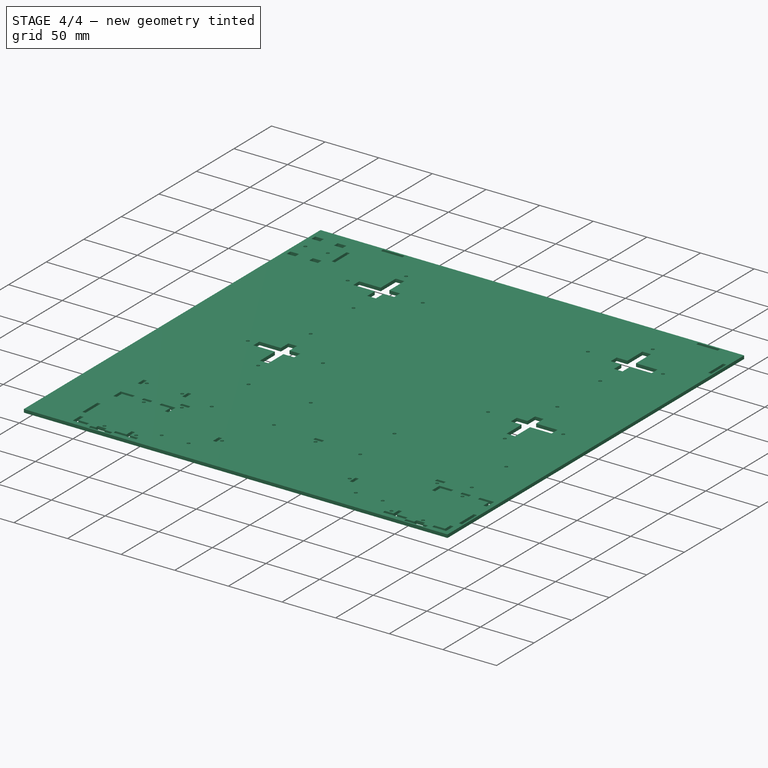
[diagram: stage 4 of 4 — iso view after this stage's code; geometry added in this stage tinted green]
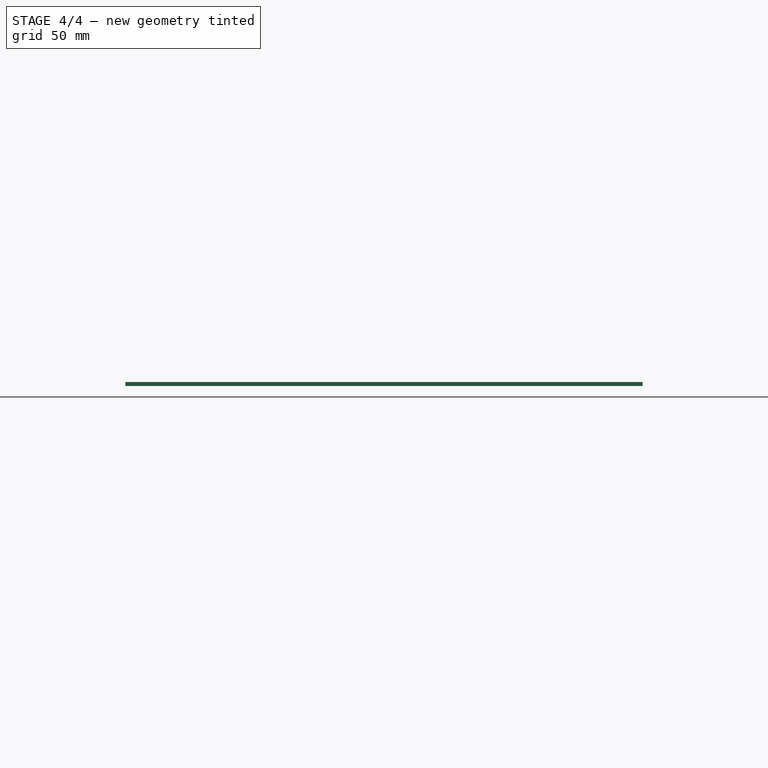
[diagram: stage 4 of 4 — front view after this stage's code; geometry added in this stage tinted green]
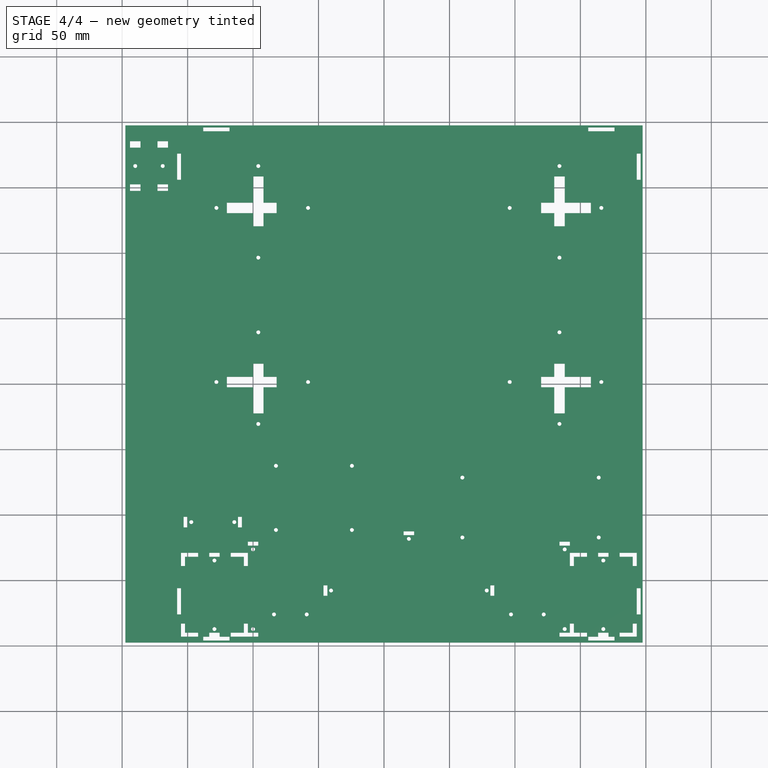
[diagram: stage 4 of 4 — top view after this stage's code; geometry added in this stage tinted green]
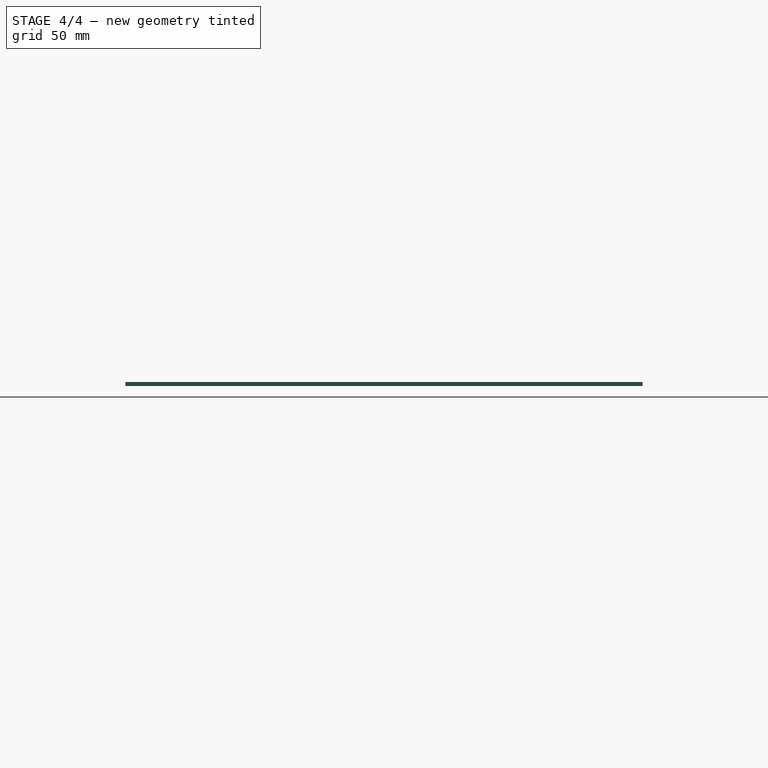
[diagram: stage 4 of 4 — right view after this stage's code; geometry added in this stage tinted green]
FEATURE [Sketcher::SketchObject] Sketch009
  ExternalGeometry = -> [Pocket005]
  FullyConstrained = true
  MapMode = 5
  Placement = pos=(0,0,3) rot=(0,0,1;0rad)
  Support = -> [Pocket005]
  sketch-geometry (20):
    g0: LineSegment StartX=-104 StartY=-120.5 StartZ=0 EndX=-96 EndY=-120.5 EndZ=0
    g1: LineSegment StartX=-96 StartY=-120.5 StartZ=0 EndX=-96 EndY=-123.5 EndZ=0
    g2: LineSegment StartX=-96 StartY=-123.5 StartZ=0 EndX=-104 EndY=-123.5 EndZ=0
    g3: LineSegment StartX=-104 StartY=-123.5 StartZ=0 EndX=-104 EndY=-120.5 EndZ=0
    g4: LineSegment StartX=-104 StartY=-190 StartZ=0 EndX=-96 EndY=-190 EndZ=0
    g5: LineSegment StartX=-96 StartY=-190 StartZ=0 EndX=-96 EndY=-193 EndZ=0
    g6: LineSegment StartX=-96 StartY=-193 StartZ=0 EndX=-104 EndY=-193 EndZ=0
    g7: LineSegment StartX=-104 StartY=-193 StartZ=0 EndX=-104 EndY=-190 EndZ=0
    g8: Circle CenterX=-100 CenterY=-126.3 CenterZ=0 NormalX=0 NormalY=0 NormalZ=1 AngleXU=0 Radius=1.5
    g9: Circle CenterX=-100 CenterY=-187.2 CenterZ=0 NormalX=0 NormalY=0 NormalZ=1 AngleXU=0 Radius=1.5
    g10: LineSegment StartX=134 StartY=-120.5 StartZ=0 EndX=142 EndY=-120.5 EndZ=0
    g11: LineSegment StartX=142 StartY=-120.5 StartZ=0 EndX=142 EndY=-123.5 EndZ=0
    g12: LineSegment StartX=142 StartY=-123.5 StartZ=0 EndX=134 EndY=-123.5 EndZ=0
    g13: LineSegment StartX=134 StartY=-123.5 StartZ=0 EndX=134 EndY=-120.5 EndZ=0
    g14: LineSegment StartX=134 StartY=-190 StartZ=0 EndX=142 EndY=-190 EndZ=0
    g15: LineSegment StartX=142 StartY=-190 StartZ=0 EndX=142 EndY=-193 EndZ=0
    g16: LineSegment StartX=142 StartY=-193 StartZ=0 EndX=134 EndY=-193 EndZ=0
    g17: LineSegment StartX=134 StartY=-193 StartZ=0 EndX=134 EndY=-190 EndZ=0
    g18: Circle CenterX=138 CenterY=-126.3 CenterZ=0 NormalX=0 NormalY=0 NormalZ=1 AngleXU=0 Radius=1.5
    g19: Circle CenterX=138 CenterY=-187.2 CenterZ=0 NormalX=0 NormalY=0 NormalZ=1 AngleXU=0 Radius=1.5
  constraints (60):
    c: Coincident(g0,g1)
    c: Coincident(g1,g2)
    c: Coincident(g2,g3)
    c: Coincident(g3,g0)
    c: Horizontal(g0)
    c: Horizontal(g2)
    c: Vertical(g1)
    c: Vertical(g3)
    c: Coincident(g4,g5)
    c: Coincident(g5,g6)
    c: Coincident(g7,g4)
    c: Horizontal(g4)
    c: Horizontal(g6)
    c: Vertical(g5)
    c: Vertical(g7)
    c: Equal(g4,g2)
    c: DistanceX(g2,g2) = 8
    c: DistanceY(g3,g3) = 3
    c: DistanceY(g6,g0) = 72.5
    c: Vertical(g4,g2)
    c: Equal(g9,g8)
    c: Diameter(g8) = 3
    c: DistanceX(g2,g8) = 4
    c: DistanceY(g8,g1) = 2.8
    c: DistanceY(g4,g9) = 2.8
    c: Vertical(g9,g8)
    c: Equal(g3,g7)
    c: Coincident(g6,g7)
    c: Horizontal(g6,g-3)
    c: DistanceX(g-3,g6) = 14
    c: Coincident(g10,g11)
    c: Coincident(g11,g12)
    c: Coincident(g12,g13)
    c: Coincident(g13,g10)
    c: Horizontal(g10)
    c: Horizontal(g12)
    c: Vertical(g11)
    c: Vertical(g13)
    c: Coincident(g14,g15)
    c: Coincident(g15,g16)
    c: Coincident(g16,g17)
    c: Coincident(g17,g14)
    c: Horizontal(g14)
    c: Horizontal(g16)
    c: Vertical(g15)
    c: Vertical(g17)
    c: Equal(g13,g17)
    c: Equal(g17,g1)
    c: Equal(g12,g14)
    c: Equal(g14,g0)
    c: Equal(g19,g18)
    c: Equal(g18,g8)
    c: Horizontal(g10,g0)
    c: Horizontal(g16,g5)
    c: DistanceY(g14,g19) = 2.8
    c: Vertical(g14,g10)
    c: DistanceX(g18,g11) = 4
    c: Horizontal(g18,g8)
    c: Vertical(g19,g18)
    c: DistanceX(g6,g15) = 246
FEATURE [PartDesign::Pocket] Pocket008  label="buttonholder"
  BaseFeature = -> Pocket005
  Length = 3
  Length2 = 100
  Profile = -> Sketch009
  Refine = true
  Type = 0
FEATURE [Sketcher::SketchObject] Sketch010
  ExternalGeometry = -> [Pocket008]
  FullyConstrained = true
  MapMode = 5
  Placement = pos=(0,0,3) rot=(0,0,1;0rad)
  Support = -> [Pocket008]
  expr: Constraints[12] = .Constraints.horz
  sketch-geometry (4):
    g0: Circle CenterX=-84 CenterY=-176 CenterZ=0 NormalX=0 NormalY=0 NormalZ=1 AngleXU=0 Radius=1.5
    g1: Circle CenterX=-59 CenterY=-176 CenterZ=0 NormalX=0 NormalY=0 NormalZ=1 AngleXU=0 Radius=1.5
    g2: Circle CenterX=97 CenterY=-176 CenterZ=0 NormalX=0 NormalY=0 NormalZ=1 AngleXU=0 Radius=1.5
    g3: Circle CenterX=122 CenterY=-176 CenterZ=0 NormalX=0 NormalY=0 NormalZ=1 AngleXU=0 Radius=1.5
  constraints (13):
    c: Equal(g0,g1)
    c: Equal(g0,g2)
    c: Equal(g0,g3)
    c: Diameter(g0) = 3
    c: Horizontal(g0,g1)
    c: Horizontal(g1,g2)
    c: Horizontal(g2,g3)
    c: DistanceX(g0,g1) = 25
    c: DistanceX(g2,g3) = 25
    c: DistanceX(g-3) = -118
    c: DistanceX(g-3,g0) = 34  'horz'
    c: DistanceY(g-3,g0) = 17  'vert'
    c: DistanceX(g3,g-4) = 34
FEATURE [PartDesign::Pocket] Pocket009
  BaseFeature = -> Pocket008
  Length = 3
  Length2 = 100
  Profile = -> Sketch010
  Refine = true
  Type = 0
FEATURE [PartDesign::Body] Body
  Group = -> [Sketch,Pad,Sketch001,Pocket,Sketch002,Pocket001,Sketch003,Pocket002,Sketch004,Pocket003,Sketch005,Pocket004,Sketch006,Pocket005,Sketch009,Pocket008,Sketch010,Pocket009]
  Origin = -> Origin
  Tip = -> Pocket009
FEATURE [Part::Part2DObjectPython] Shape2DView  # Draft 2D object (typed FeaturePython)
  Base = -> Body
  FuseArch = false
  HiddenLines = false
  InPlace = true
  Projection = (0,0,1)
  ProjectionMode = 0
  SegmentLength = 0.05
  Tessellation = false
  VisibleOnly = false
FEATURE [Sketcher::SketchObject] Sketch011
  FullyConstrained = false
  sketch-geometry (239):
    g0: LineSegment StartX=-197.5 StartY=197.5 StartZ=0 EndX=197.5 EndY=197.5 EndZ=0
    g1: LineSegment StartX=-197.5 StartY=-197.5 StartZ=0 EndX=-197.5 EndY=197.5 EndZ=0
    g2: LineSegment StartX=197.5 StartY=197.5 StartZ=0 EndX=197.5 EndY=-197.5 EndZ=0
    g3: LineSegment StartX=197.5 StartY=-197.5 StartZ=0 EndX=-197.5 EndY=-197.5 EndZ=0
    g4: LineSegment StartX=190 StartY=-190 StartZ=0 EndX=180 EndY=-190 EndZ=0
    g5: LineSegment StartX=190 StartY=-183 StartZ=0 EndX=190 EndY=-190 EndZ=0
    g6: LineSegment StartX=180 StartY=-190 StartZ=0 EndX=180 EndY=-193 EndZ=0
    g7: LineSegment StartX=193 StartY=-183 StartZ=0 EndX=190 EndY=-183 EndZ=0
    g8: LineSegment StartX=180 StartY=-193 StartZ=0 EndX=193 EndY=-193 EndZ=0
    g9: LineSegment StartX=193 StartY=-193 StartZ=0 EndX=193 EndY=-183 EndZ=0
    g10: LineSegment StartX=156 StartY=-196 StartZ=0 EndX=156 EndY=-193 EndZ=0
    g11: LineSegment StartX=176 StartY=-196 StartZ=0 EndX=156 EndY=-196 EndZ=0
    g12: LineSegment StartX=156 StartY=-193 StartZ=0 EndX=163.5 EndY=-193 EndZ=0
    g13: LineSegment StartX=176 StartY=-193 StartZ=0 EndX=176 EndY=-196 EndZ=0
    g14: LineSegment StartX=163.5 StartY=-193 StartZ=0 EndX=163.5 EndY=-190 EndZ=0
    g15: LineSegment StartX=171.5 StartY=-193 StartZ=0 EndX=176 EndY=-193 EndZ=0
    g16: LineSegment StartX=163.5 StartY=-190 StartZ=0 EndX=171.5 EndY=-190 EndZ=0
    g17: LineSegment StartX=171.5 StartY=-190 StartZ=0 EndX=171.5 EndY=-193 EndZ=0
    g18: Circle CenterX=167.5 CenterY=-187.2 CenterZ=0 NormalX=0 NormalY=0 NormalZ=1 AngleXU=0 Radius=1.5
    g19: LineSegment StartX=193 StartY=-176 StartZ=0 EndX=193 EndY=-156 EndZ=0
    g20: LineSegment StartX=196 StartY=-176 StartZ=0 EndX=193 EndY=-176 EndZ=0
    g21: LineSegment StartX=193 StartY=-156 StartZ=0 EndX=196 EndY=-156 EndZ=0
    g22: LineSegment StartX=196 StartY=-156 StartZ=0 EndX=196 EndY=-176 EndZ=0
    g23: LineSegment StartX=142 StartY=-183 StartZ=0 EndX=145 EndY=-183 EndZ=0
    g24: LineSegment StartX=142 StartY=-190 StartZ=0 EndX=142 EndY=-183 EndZ=0
    g25: LineSegment StartX=145 StartY=-183 StartZ=0 EndX=145 EndY=-190 EndZ=0
    g26: LineSegment StartX=134 StartY=-190 StartZ=0 EndX=142 EndY=-190 EndZ=0
    g27: LineSegment StartX=145 StartY=-190 StartZ=0 EndX=155 EndY=-190 EndZ=0
    g28: LineSegment StartX=134 StartY=-193 StartZ=0 EndX=134 EndY=-190 EndZ=0
    g29: LineSegment StartX=155 StartY=-190 StartZ=0 EndX=155 EndY=-193 EndZ=0
    g30: LineSegment StartX=155 StartY=-193 StartZ=0 EndX=134 EndY=-193 EndZ=0
    g31: Circle CenterX=138 CenterY=-187.2 CenterZ=0 NormalX=0 NormalY=0 NormalZ=1 AngleXU=0 Radius=1.5
    g32: Circle CenterX=122 CenterY=-176 CenterZ=0 NormalX=0 NormalY=0 NormalZ=1 AngleXU=0 Radius=1.5
    g33: LineSegment StartX=193 StartY=-129 StartZ=0 EndX=180 EndY=-129 EndZ=0
    g34: LineSegment StartX=193 StartY=-139 StartZ=0 EndX=193 EndY=-129 EndZ=0
    g35: LineSegment StartX=180 StartY=-129 StartZ=0 EndX=180 EndY=-132 EndZ=0
    g36: LineSegment StartX=190 StartY=-139 StartZ=0 EndX=193 EndY=-139 EndZ=0
    g37: LineSegment StartX=180 StartY=-132 StartZ=0 EndX=190 EndY=-132 EndZ=0
    g38: LineSegment StartX=190 StartY=-132 StartZ=0 EndX=190 EndY=-139 EndZ=0
    g39: Circle CenterX=167.5 CenterY=-134.8 CenterZ=0 NormalX=0 NormalY=0 NormalZ=1 AngleXU=0 Radius=1.5
    g40: LineSegment StartX=163.5 StartY=-129 StartZ=0 EndX=171.5 EndY=-129 EndZ=0
    g41: LineSegment StartX=163.5 StartY=-132 StartZ=0 EndX=163.5 EndY=-129 EndZ=0
    g42: LineSegment StartX=171.5 StartY=-129 StartZ=0 EndX=171.5 EndY=-132 EndZ=0
    g43: LineSegment StartX=171.5 StartY=-132 StartZ=0 EndX=163.5 EndY=-132 EndZ=0
    g44: LineSegment StartX=155 StartY=-129 StartZ=0 EndX=155 EndY=-132 EndZ=0
    g45: LineSegment StartX=142 StartY=-129 StartZ=0 EndX=155 EndY=-129 EndZ=0
    g46: LineSegment StartX=155 StartY=-132 StartZ=0 EndX=145 EndY=-132 EndZ=0
    g47: LineSegment StartX=142 StartY=-139 StartZ=0 EndX=142 EndY=-129 EndZ=0
    g48: LineSegment StartX=145 StartY=-132 StartZ=0 EndX=145 EndY=-139 EndZ=0
    g49: LineSegment StartX=145 StartY=-139 StartZ=0 EndX=142 EndY=-139 EndZ=0
    g50: Circle CenterX=164 CenterY=-117.22 CenterZ=0 NormalX=0 NormalY=0 NormalZ=1 AngleXU=0 Radius=1.5
    g51: Circle CenterX=138 CenterY=-126.3 CenterZ=0 NormalX=0 NormalY=0 NormalZ=1 AngleXU=0 Radius=1.5
    g52: LineSegment StartX=134 StartY=-120.5 StartZ=0 EndX=142 EndY=-120.5 EndZ=0
    g53: LineSegment StartX=134 StartY=-123.5 StartZ=0 EndX=134 EndY=-120.5 EndZ=0
    g54: LineSegment StartX=142 StartY=-120.5 StartZ=0 EndX=142 EndY=-123.5 EndZ=0
    g55: LineSegment StartX=142 StartY=-123.5 StartZ=0 EndX=134 EndY=-123.5 EndZ=0
    g56: Circle CenterX=97 CenterY=-176 CenterZ=0 NormalX=0 NormalY=0 NormalZ=1 AngleXU=0 Radius=1.5
    g57: LineSegment StartX=84.25 StartY=-161.75 StartZ=0 EndX=84.25 EndY=-153.75 EndZ=0
    g58: LineSegment StartX=81.25 StartY=-161.75 StartZ=0 EndX=84.25 EndY=-161.75 EndZ=0
    g59: LineSegment StartX=84.25 StartY=-153.75 StartZ=0 EndX=81.25 EndY=-153.75 EndZ=0
    g60: LineSegment StartX=81.25 StartY=-153.75 StartZ=0 EndX=81.25 EndY=-161.75 EndZ=0
    g61: Circle CenterX=78.45 CenterY=-157.75 CenterZ=0 NormalX=0 NormalY=0 NormalZ=1 AngleXU=0 Radius=1.5
    g62: Circle CenterX=59.86 CenterY=-117.22 CenterZ=0 NormalX=0 NormalY=0 NormalZ=1 AngleXU=0 Radius=1.5
    g63: Circle CenterX=19 CenterY=-118.3 CenterZ=0 NormalX=0 NormalY=0 NormalZ=1 AngleXU=0 Radius=1.5
    g64: LineSegment StartX=15 StartY=-112.5 StartZ=0 EndX=15 EndY=-115.5 EndZ=0
    g65: LineSegment StartX=23 StartY=-112.5 StartZ=0 EndX=15 EndY=-112.5 EndZ=0
    g66: LineSegment StartX=15 StartY=-115.5 StartZ=0 EndX=23 EndY=-115.5 EndZ=0
    g67: LineSegment StartX=23 StartY=-115.5 StartZ=0 EndX=23 EndY=-112.5 EndZ=0
    g68: Circle CenterX=164 CenterY=-71.5 CenterZ=0 NormalX=0 NormalY=0 NormalZ=1 AngleXU=0 Radius=1.5
    g69: Circle CenterX=134 CenterY=-30.5 CenterZ=0 NormalX=0 NormalY=0 NormalZ=1 AngleXU=0 Radius=1.5
    g70: LineSegment StartX=138 StartY=15.5 StartZ=0 EndX=130 EndY=15.5 EndZ=0
    g71: LineSegment StartX=138 StartY=5.5 StartZ=0 EndX=138 EndY=15.5 EndZ=0
    g72: LineSegment StartX=130 StartY=15.5 StartZ=0 EndX=130 EndY=5.5 EndZ=0
    g73: LineSegment StartX=158 StartY=5.5 StartZ=0 EndX=138 EndY=5.5 EndZ=0
    g74: LineSegment StartX=130 StartY=5.5 StartZ=0 EndX=120 EndY=5.5 EndZ=0
    g75: LineSegment StartX=158 StartY=-2.5 StartZ=0 EndX=158 EndY=5.5 EndZ=0
    g76: LineSegment StartX=120 StartY=5.5 StartZ=0 EndX=120 EndY=-2.5 EndZ=0
    g77: LineSegment StartX=138 StartY=-2.5 StartZ=0 EndX=158 EndY=-2.5 EndZ=0
    g78: LineSegment StartX=120 StartY=-2.5 StartZ=0 EndX=130 EndY=-2.5 EndZ=0
    g79: LineSegment StartX=138 StartY=-22.5 StartZ=0 EndX=138 EndY=-2.5 EndZ=0
    g80: LineSegment StartX=130 StartY=-2.5 StartZ=0 EndX=130 EndY=-22.5 EndZ=0
    g81: LineSegment StartX=130 StartY=-22.5 StartZ=0 EndX=138 EndY=-22.5 EndZ=0
    g82: Circle CenterX=59.86 CenterY=-71.5 CenterZ=0 NormalX=0 NormalY=0 NormalZ=1 AngleXU=0 Radius=1.5
    g83: Circle CenterX=-40.45 CenterY=-157.75 CenterZ=0 NormalX=0 NormalY=0 NormalZ=1 AngleXU=0 Radius=1.5
    g84: LineSegment StartX=-46.25 StartY=-153.75 StartZ=0 EndX=-43.25 EndY=-153.75 EndZ=0
    g85: LineSegment StartX=-46.25 StartY=-161.75 StartZ=0 EndX=-46.25 EndY=-153.75 EndZ=0
    g86: LineSegment StartX=-43.25 StartY=-153.75 StartZ=0 EndX=-43.25 EndY=-161.75 EndZ=0
    g87: LineSegment StartX=-43.25 StartY=-161.75 StartZ=0 EndX=-46.25 EndY=-161.75 EndZ=0
    g88: Circle CenterX=-59 CenterY=-176 CenterZ=0 NormalX=0 NormalY=0 NormalZ=1 AngleXU=0 Radius=1.5
    g89: Circle CenterX=-84 CenterY=-176 CenterZ=0 NormalX=0 NormalY=0 NormalZ=1 AngleXU=0 Radius=1.5
    g90: Circle CenterX=-24.5 CenterY=-111.5 CenterZ=0 NormalX=0 NormalY=0 NormalZ=1 AngleXU=0 Radius=1.5
    g91: Circle CenterX=-82.5 CenterY=-111.5 CenterZ=0 NormalX=0 NormalY=0 NormalZ=1 AngleXU=0 Radius=1.5
    g92: Circle CenterX=-100 CenterY=-187.2 CenterZ=0 NormalX=0 NormalY=0 NormalZ=1 AngleXU=0 Radius=1.5
    g93: LineSegment StartX=-107 StartY=-183 StartZ=0 EndX=-104 EndY=-183 EndZ=0
    g94: LineSegment StartX=-107 StartY=-190 StartZ=0 EndX=-107 EndY=-183 EndZ=0
    g95: LineSegment StartX=-104 StartY=-183 StartZ=0 EndX=-104 EndY=-190 EndZ=0
    g96: LineSegment StartX=-117 StartY=-190 StartZ=0 EndX=-107 EndY=-190 EndZ=0
    g97: LineSegment StartX=-104 StartY=-190 StartZ=0 EndX=-96 EndY=-190 EndZ=0
    g98: LineSegment StartX=-117 StartY=-193 StartZ=0 EndX=-117 EndY=-190 EndZ=0
    g99: LineSegment StartX=-96 StartY=-190 StartZ=0 EndX=-96 EndY=-193 EndZ=0
    g100: LineSegment StartX=-96 StartY=-193 StartZ=0 EndX=-117 EndY=-193 EndZ=0
    g101: LineSegment StartX=-138 StartY=-196 StartZ=0 EndX=-138 EndY=-193 EndZ=0
    g102: LineSegment StartX=-118 StartY=-196 StartZ=0 EndX=-138 EndY=-196 EndZ=0
    g103: LineSegment StartX=-138 StartY=-193 StartZ=0 EndX=-133.5 EndY=-193 EndZ=0
    g104: LineSegment StartX=-118 StartY=-193 StartZ=0 EndX=-118 EndY=-196 EndZ=0
    g105: LineSegment StartX=-133.5 StartY=-193 StartZ=0 EndX=-133.5 EndY=-190 EndZ=0
    g106: LineSegment StartX=-125.5 StartY=-193 StartZ=0 EndX=-118 EndY=-193 EndZ=0
    g107: LineSegment StartX=-133.5 StartY=-190 StartZ=0 EndX=-125.5 EndY=-190 EndZ=0
    g108: LineSegment StartX=-125.5 StartY=-190 StartZ=0 EndX=-125.5 EndY=-193 EndZ=0
    g109: Circle CenterX=-129.5 CenterY=-187.2 CenterZ=0 NormalX=0 NormalY=0 NormalZ=1 AngleXU=0 Radius=1.5
    g110: LineSegment StartX=-152 StartY=-183 StartZ=0 EndX=-155 EndY=-183 EndZ=0
    g111: LineSegment StartX=-152 StartY=-190 StartZ=0 EndX=-152 EndY=-183 EndZ=0
    g112: LineSegment StartX=-155 StartY=-183 StartZ=0 EndX=-155 EndY=-193 EndZ=0
    g113: LineSegment StartX=-142 StartY=-190 StartZ=0 EndX=-152 EndY=-190 EndZ=0
    g114: LineSegment StartX=-155 StartY=-193 StartZ=0 EndX=-142 EndY=-193 EndZ=0
    g115: LineSegment StartX=-142 StartY=-193 StartZ=0 EndX=-142 EndY=-190 EndZ=0
    g116: LineSegment StartX=-158 StartY=-176 StartZ=0 EndX=-158 EndY=-156 EndZ=0
    g117: LineSegment StartX=-155 StartY=-176 StartZ=0 EndX=-158 EndY=-176 EndZ=0
    g118: LineSegment StartX=-158 StartY=-156 StartZ=0 EndX=-155 EndY=-156 EndZ=0
    g119: LineSegment StartX=-155 StartY=-156 StartZ=0 EndX=-155 EndY=-176 EndZ=0
    g120: Circle CenterX=-100 CenterY=-126.3 CenterZ=0 NormalX=0 NormalY=0 NormalZ=1 AngleXU=0 Radius=1.5
    g121: LineSegment StartX=-117 StartY=-129 StartZ=0 EndX=-104 EndY=-129 EndZ=0
    g122: LineSegment StartX=-117 StartY=-132 StartZ=0 EndX=-117 EndY=-129 EndZ=0
    g123: LineSegment StartX=-104 StartY=-129 StartZ=0 EndX=-104 EndY=-139 EndZ=0
    g124: LineSegment StartX=-107 StartY=-132 StartZ=0 EndX=-117 EndY=-132 EndZ=0
    g125: LineSegment StartX=-104 StartY=-139 StartZ=0 EndX=-107 EndY=-139 EndZ=0
    g126: LineSegment StartX=-107 StartY=-139 StartZ=0 EndX=-107 EndY=-132 EndZ=0
    g127: Circle CenterX=-129.5 CenterY=-134.8 CenterZ=0 NormalX=0 NormalY=0 NormalZ=1 AngleXU=0 Radius=1.5
    g128: LineSegment StartX=-133.5 StartY=-129 StartZ=0 EndX=-125.5 EndY=-129 EndZ=0
    g129: LineSegment StartX=-133.5 StartY=-132 StartZ=0 EndX=-133.5 EndY=-129 EndZ=0
    g130: LineSegment StartX=-125.5 StartY=-129 StartZ=0 EndX=-125.5 EndY=-132 EndZ=0
    g131: LineSegment StartX=-125.5 StartY=-132 StartZ=0 EndX=-133.5 EndY=-132 EndZ=0
    g132: LineSegment StartX=-104 StartY=-120.5 StartZ=0 EndX=-96 EndY=-120.5 EndZ=0
    g133: LineSegment StartX=-104 StartY=-123.5 StartZ=0 EndX=-104 EndY=-120.5 EndZ=0
    g134: LineSegment StartX=-96 StartY=-120.5 StartZ=0 EndX=-96 EndY=-123.5 EndZ=0
    g135: LineSegment StartX=-96 StartY=-123.5 StartZ=0 EndX=-104 EndY=-123.5 EndZ=0
    g136: LineSegment StartX=-111.5 StartY=-101.5 StartZ=0 EndX=-108.5 EndY=-101.5 EndZ=0
    g137: LineSegment StartX=-111.5 StartY=-109.5 StartZ=0 EndX=-111.5 EndY=-101.5 EndZ=0
    g138: LineSegment StartX=-108.5 StartY=-101.5 StartZ=0 EndX=-108.5 EndY=-109.5 EndZ=0
    g139: LineSegment StartX=-108.5 StartY=-109.5 StartZ=0 EndX=-111.5 EndY=-109.5 EndZ=0
    g140: Circle CenterX=-114.3 CenterY=-105.5 CenterZ=0 NormalX=0 NormalY=0 NormalZ=1 AngleXU=0 Radius=1.5
    g141: LineSegment StartX=-142 StartY=-129 StartZ=0 EndX=-155 EndY=-129 EndZ=0
    g142: LineSegment StartX=-142 StartY=-132 StartZ=0 EndX=-142 EndY=-129 EndZ=0
    g143: LineSegment StartX=-155 StartY=-129 StartZ=0 EndX=-155 EndY=-139 EndZ=0
    g144: LineSegment StartX=-152 StartY=-132 StartZ=0 EndX=-142 EndY=-132 EndZ=0
    g145: LineSegment StartX=-155 StartY=-139 StartZ=0 EndX=-152 EndY=-139 EndZ=0
    g146: LineSegment StartX=-152 StartY=-139 StartZ=0 EndX=-152 EndY=-132 EndZ=0
    g147: Circle CenterX=-147.2 CenterY=-105.5 CenterZ=0 NormalX=0 NormalY=0 NormalZ=1 AngleXU=0 Radius=1.5
    g148: LineSegment StartX=-153 StartY=-101.5 StartZ=0 EndX=-150 EndY=-101.5 EndZ=0
    g149: LineSegment StartX=-153 StartY=-109.5 StartZ=0 EndX=-153 EndY=-101.5 EndZ=0
    g150: LineSegment StartX=-150 StartY=-101.5 StartZ=0 EndX=-150 EndY=-109.5 EndZ=0
    g151: LineSegment StartX=-150 StartY=-109.5 StartZ=0 EndX=-153 EndY=-109.5 EndZ=0
    g152: Circle CenterX=-24.5 CenterY=-62.5 CenterZ=0 NormalX=0 NormalY=0 NormalZ=1 AngleXU=0 Radius=1.5
    g153: Circle CenterX=-82.5 CenterY=-62.5 CenterZ=0 NormalX=0 NormalY=0 NormalZ=1 AngleXU=0 Radius=1.5
    g154: Circle CenterX=-96 CenterY=-30.5 CenterZ=0 NormalX=0 NormalY=0 NormalZ=1 AngleXU=0 Radius=1.5
    g155: LineSegment StartX=-100 StartY=15.5 StartZ=0 EndX=-92 EndY=15.5 EndZ=0
    g156: LineSegment StartX=-100 StartY=5.5 StartZ=0 EndX=-100 EndY=15.5 EndZ=0
    g157: LineSegment StartX=-92 StartY=15.5 StartZ=0 EndX=-92 EndY=5.5 EndZ=0
    g158: LineSegment StartX=-120 StartY=5.5 StartZ=0 EndX=-100 EndY=5.5 EndZ=0
    g159: LineSegment StartX=-92 StartY=5.5 StartZ=0 EndX=-82 EndY=5.5 EndZ=0
    g160: LineSegment StartX=-120 StartY=-2.5 StartZ=0 EndX=-120 EndY=5.5 EndZ=0
    g161: LineSegment StartX=-82 StartY=5.5 StartZ=0 EndX=-82 EndY=-2.5 EndZ=0
    g162: LineSegment StartX=-100 StartY=-2.5 StartZ=0 EndX=-120 EndY=-2.5 EndZ=0
    g163: LineSegment StartX=-82 StartY=-2.5 StartZ=0 EndX=-92 EndY=-2.5 EndZ=0
    g164: LineSegment StartX=-100 StartY=-22.5 StartZ=0 EndX=-100 EndY=-2.5 EndZ=0
    g165: LineSegment StartX=-92 StartY=-2.5 StartZ=0 EndX=-92 EndY=-22.5 EndZ=0
    g166: LineSegment StartX=-92 StartY=-22.5 StartZ=0 EndX=-100 EndY=-22.5 EndZ=0
    g167: Circle CenterX=166 CenterY=1.5 CenterZ=0 NormalX=0 NormalY=0 NormalZ=1 AngleXU=0 Radius=1.5
    g168: Circle CenterX=134 CenterY=39.5 CenterZ=0 NormalX=0 NormalY=0 NormalZ=1 AngleXU=0 Radius=1.5
    g169: Circle CenterX=134 CenterY=96.5 CenterZ=0 NormalX=0 NormalY=0 NormalZ=1 AngleXU=0 Radius=1.5
    g170: Circle CenterX=96 CenterY=1.5 CenterZ=0 NormalX=0 NormalY=0 NormalZ=1 AngleXU=0 Radius=1.5
    g171: Circle CenterX=166 CenterY=134.5 CenterZ=0 NormalX=0 NormalY=0 NormalZ=1 AngleXU=0 Radius=1.5
    g172: LineSegment StartX=138 StartY=158.5 StartZ=0 EndX=130 EndY=158.5 EndZ=0
    g173: LineSegment StartX=138 StartY=138.5 StartZ=0 EndX=138 EndY=158.5 EndZ=0
    g174: LineSegment StartX=130 StartY=158.5 StartZ=0 EndX=130 EndY=138.5 EndZ=0
    g175: LineSegment StartX=158 StartY=138.5 StartZ=0 EndX=138 EndY=138.5 EndZ=0
    g176: LineSegment StartX=130 StartY=138.5 StartZ=0 EndX=120 EndY=138.5 EndZ=0
    g177: LineSegment StartX=158 StartY=130.5 StartZ=0 EndX=158 EndY=138.5 EndZ=0
    g178: LineSegment StartX=120 StartY=138.5 StartZ=0 EndX=120 EndY=130.5 EndZ=0
    g179: LineSegment StartX=138 StartY=130.5 StartZ=0 EndX=158 EndY=130.5 EndZ=0
    g180: LineSegment StartX=120 StartY=130.5 StartZ=0 EndX=130 EndY=130.5 EndZ=0
    g181: LineSegment StartX=138 StartY=120.5 StartZ=0 EndX=138 EndY=130.5 EndZ=0
    g182: LineSegment StartX=130 StartY=130.5 StartZ=0 EndX=130 EndY=120.5 EndZ=0
    g183: LineSegment StartX=130 StartY=120.5 StartZ=0 EndX=138 EndY=120.5 EndZ=0
    g184: LineSegment StartX=193 StartY=156 StartZ=0 EndX=193 EndY=176 EndZ=0
    g185: LineSegment StartX=196 StartY=156 StartZ=0 EndX=193 EndY=156 EndZ=0
    g186: LineSegment StartX=193 StartY=176 StartZ=0 EndX=196 EndY=176 EndZ=0
    g187: LineSegment StartX=196 StartY=176 StartZ=0 EndX=196 EndY=156 EndZ=0
    g188: LineSegment StartX=156 StartY=193 StartZ=0 EndX=156 EndY=196 EndZ=0
    g189: LineSegment StartX=176 StartY=193 StartZ=0 EndX=156 EndY=193 EndZ=0
    g190: LineSegment StartX=156 StartY=196 StartZ=0 EndX=176 EndY=196 EndZ=0
    g191: LineSegment StartX=176 StartY=196 StartZ=0 EndX=176 EndY=193 EndZ=0
    g192: Circle CenterX=134 CenterY=166.5 CenterZ=0 NormalX=0 NormalY=0 NormalZ=1 AngleXU=0 Radius=1.5
    g193: Circle CenterX=96 CenterY=134.5 CenterZ=0 NormalX=0 NormalY=0 NormalZ=1 AngleXU=0 Radius=1.5
    g194: Circle CenterX=-58 CenterY=1.5 CenterZ=0 NormalX=0 NormalY=0 NormalZ=1 AngleXU=0 Radius=1.5
    g195: Circle CenterX=-96 CenterY=39.5 CenterZ=0 NormalX=0 NormalY=0 NormalZ=1 AngleXU=0 Radius=1.5
    g196: Circle CenterX=-96 CenterY=96.5 CenterZ=0 NormalX=0 NormalY=0 NormalZ=1 AngleXU=0 Radius=1.5
    g197: Circle CenterX=-128 CenterY=1.5 CenterZ=0 NormalX=0 NormalY=0 NormalZ=1 AngleXU=0 Radius=1.5
    g198: Circle CenterX=-58 CenterY=134.5 CenterZ=0 NormalX=0 NormalY=0 NormalZ=1 AngleXU=0 Radius=1.5
    g199: Circle CenterX=-96 CenterY=166.5 CenterZ=0 NormalX=0 NormalY=0 NormalZ=1 AngleXU=0 Radius=1.5
    g200: LineSegment StartX=-100 StartY=138.5 StartZ=0 EndX=-100 EndY=158.5 EndZ=0
    g201: LineSegment StartX=-120 StartY=138.5 StartZ=0 EndX=-100 EndY=138.5 EndZ=0
    g202: LineSegment StartX=-100 StartY=158.5 StartZ=0 EndX=-92 EndY=158.5 EndZ=0
    g203: LineSegment StartX=-120 StartY=130.5 StartZ=0 EndX=-120 EndY=138.5 EndZ=0
    g204: LineSegment StartX=-92 StartY=158.5 StartZ=0 EndX=-92 EndY=138.5 EndZ=0
    g205: LineSegment StartX=-100 StartY=130.5 StartZ=0 EndX=-120 EndY=130.5 EndZ=0
    g206: LineSegment StartX=-92 StartY=138.5 StartZ=0 EndX=-82 EndY=138.5 EndZ=0
    g207: LineSegment StartX=-100 StartY=120.5 StartZ=0 EndX=-100 EndY=130.5 EndZ=0
    g208: LineSegment StartX=-82 StartY=138.5 StartZ=0 EndX=-82 EndY=130.5 EndZ=0
    g209: LineSegment StartX=-92 StartY=120.5 StartZ=0 EndX=-100 EndY=120.5 EndZ=0
    g210: LineSegment StartX=-82 StartY=130.5 StartZ=0 EndX=-92 EndY=130.5 EndZ=0
    g211: LineSegment StartX=-92 StartY=130.5 StartZ=0 EndX=-92 EndY=120.5 EndZ=0
    g212: Circle CenterX=-128 CenterY=134.5 CenterZ=0 NormalX=0 NormalY=0 NormalZ=1 AngleXU=0 Radius=1.5
    g213: LineSegment StartX=-138 StartY=193 StartZ=0 EndX=-138 EndY=196 EndZ=0
    g214: LineSegment StartX=-118 StartY=193 StartZ=0 EndX=-138 EndY=193 EndZ=0
    g215: LineSegment StartX=-138 StartY=196 StartZ=0 EndX=-118 EndY=196 EndZ=0
    g216: LineSegment StartX=-118 StartY=196 StartZ=0 EndX=-118 EndY=193 EndZ=0
    g217: LineSegment StartX=-173 StartY=152.5 StartZ=0 EndX=-165 EndY=152.5 EndZ=0
    g218: LineSegment StartX=-173 StartY=147.5 StartZ=0 EndX=-173 EndY=152.5 EndZ=0
    g219: LineSegment StartX=-165 StartY=152.5 StartZ=0 EndX=-165 EndY=147.5 EndZ=0
    g220: LineSegment StartX=-165 StartY=147.5 StartZ=0 EndX=-173 EndY=147.5 EndZ=0
    g221: LineSegment StartX=-158 StartY=156 StartZ=0 EndX=-158 EndY=176 EndZ=0
    g222: LineSegment StartX=-155 StartY=156 StartZ=0 EndX=-158 EndY=156 EndZ=0
    g223: LineSegment StartX=-158 StartY=176 StartZ=0 EndX=-155 EndY=176 EndZ=0
    g224: LineSegment StartX=-155 StartY=176 StartZ=0 EndX=-155 EndY=156 EndZ=0
    g225: Circle CenterX=-169 CenterY=166.5 CenterZ=0 NormalX=0 NormalY=0 NormalZ=1 AngleXU=0 Radius=1.5
    g226: LineSegment StartX=-194 StartY=152.5 StartZ=0 EndX=-186 EndY=152.5 EndZ=0
    g227: LineSegment StartX=-194 StartY=147.5 StartZ=0 EndX=-194 EndY=152.5 EndZ=0
    g228: LineSegment StartX=-186 StartY=152.5 StartZ=0 EndX=-186 EndY=147.5 EndZ=0
    g229: LineSegment StartX=-186 StartY=147.5 StartZ=0 EndX=-194 EndY=147.5 EndZ=0
    g230: Circle CenterX=-190 CenterY=166.5 CenterZ=0 NormalX=0 NormalY=0 NormalZ=1 AngleXU=0 Radius=1.5
    g231: LineSegment StartX=-173 StartY=185.5 StartZ=0 EndX=-165 EndY=185.5 EndZ=0
    g232: LineSegment StartX=-173 StartY=180.5 StartZ=0 EndX=-173 EndY=185.5 EndZ=0
    g233: LineSegment StartX=-165 StartY=185.5 StartZ=0 EndX=-165 EndY=180.5 EndZ=0
    g234: LineSegment StartX=-165 StartY=180.5 StartZ=0 EndX=-173 EndY=180.5 EndZ=0
    g235: LineSegment StartX=-194 StartY=185.5 StartZ=0 EndX=-186 EndY=185.5 EndZ=0
    g236: LineSegment StartX=-194 StartY=180.5 StartZ=0 EndX=-194 EndY=185.5 EndZ=0
    g237: LineSegment StartX=-186 StartY=185.5 StartZ=0 EndX=-186 EndY=180.5 EndZ=0
    g238: LineSegment StartX=-186 StartY=180.5 StartZ=0 EndX=-194 EndY=180.5 EndZ=0
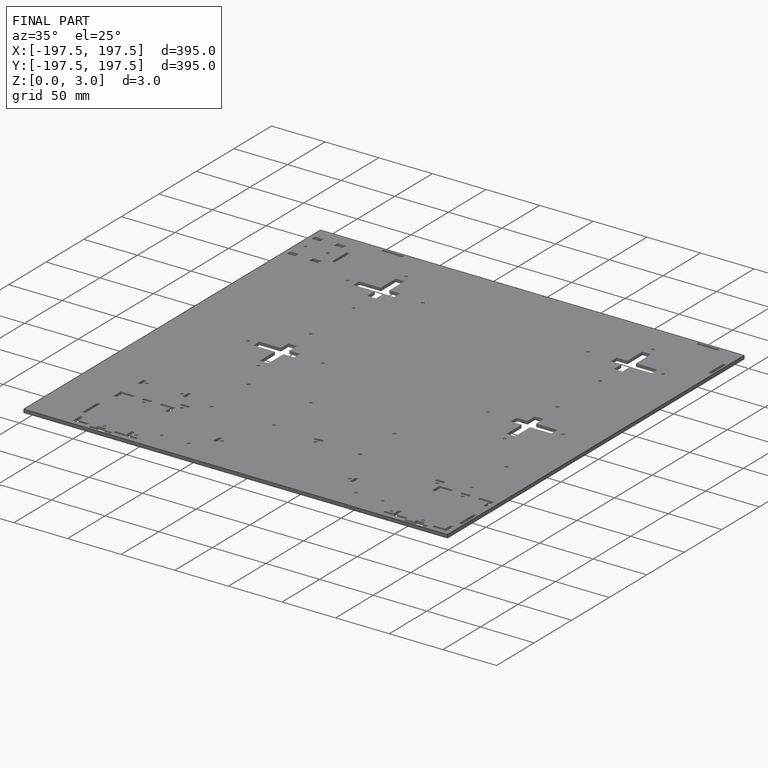
[diagram: finished part — iso view with bounding-box wireframe]
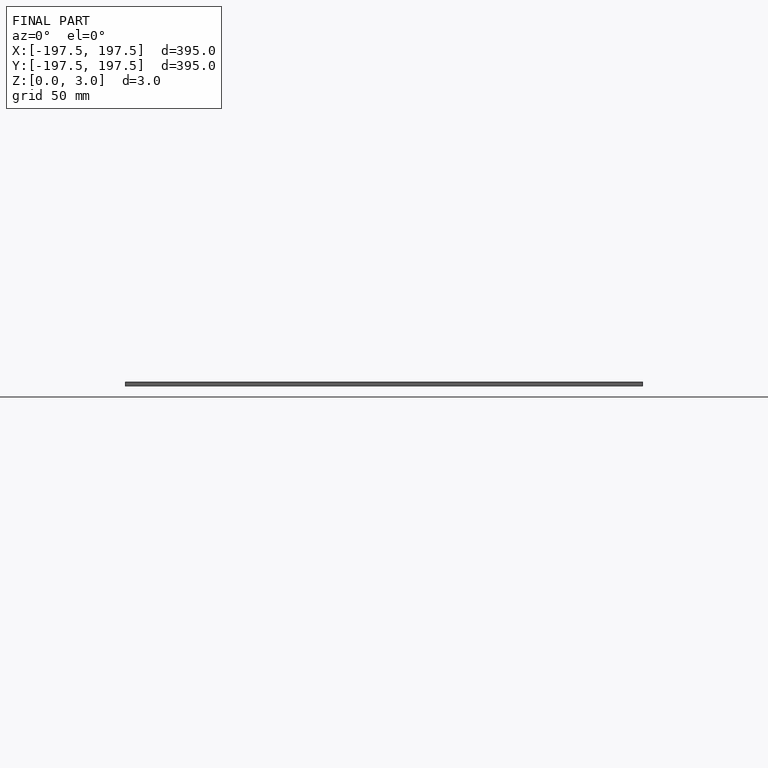
[diagram: finished part — front view with bounding-box wireframe]
